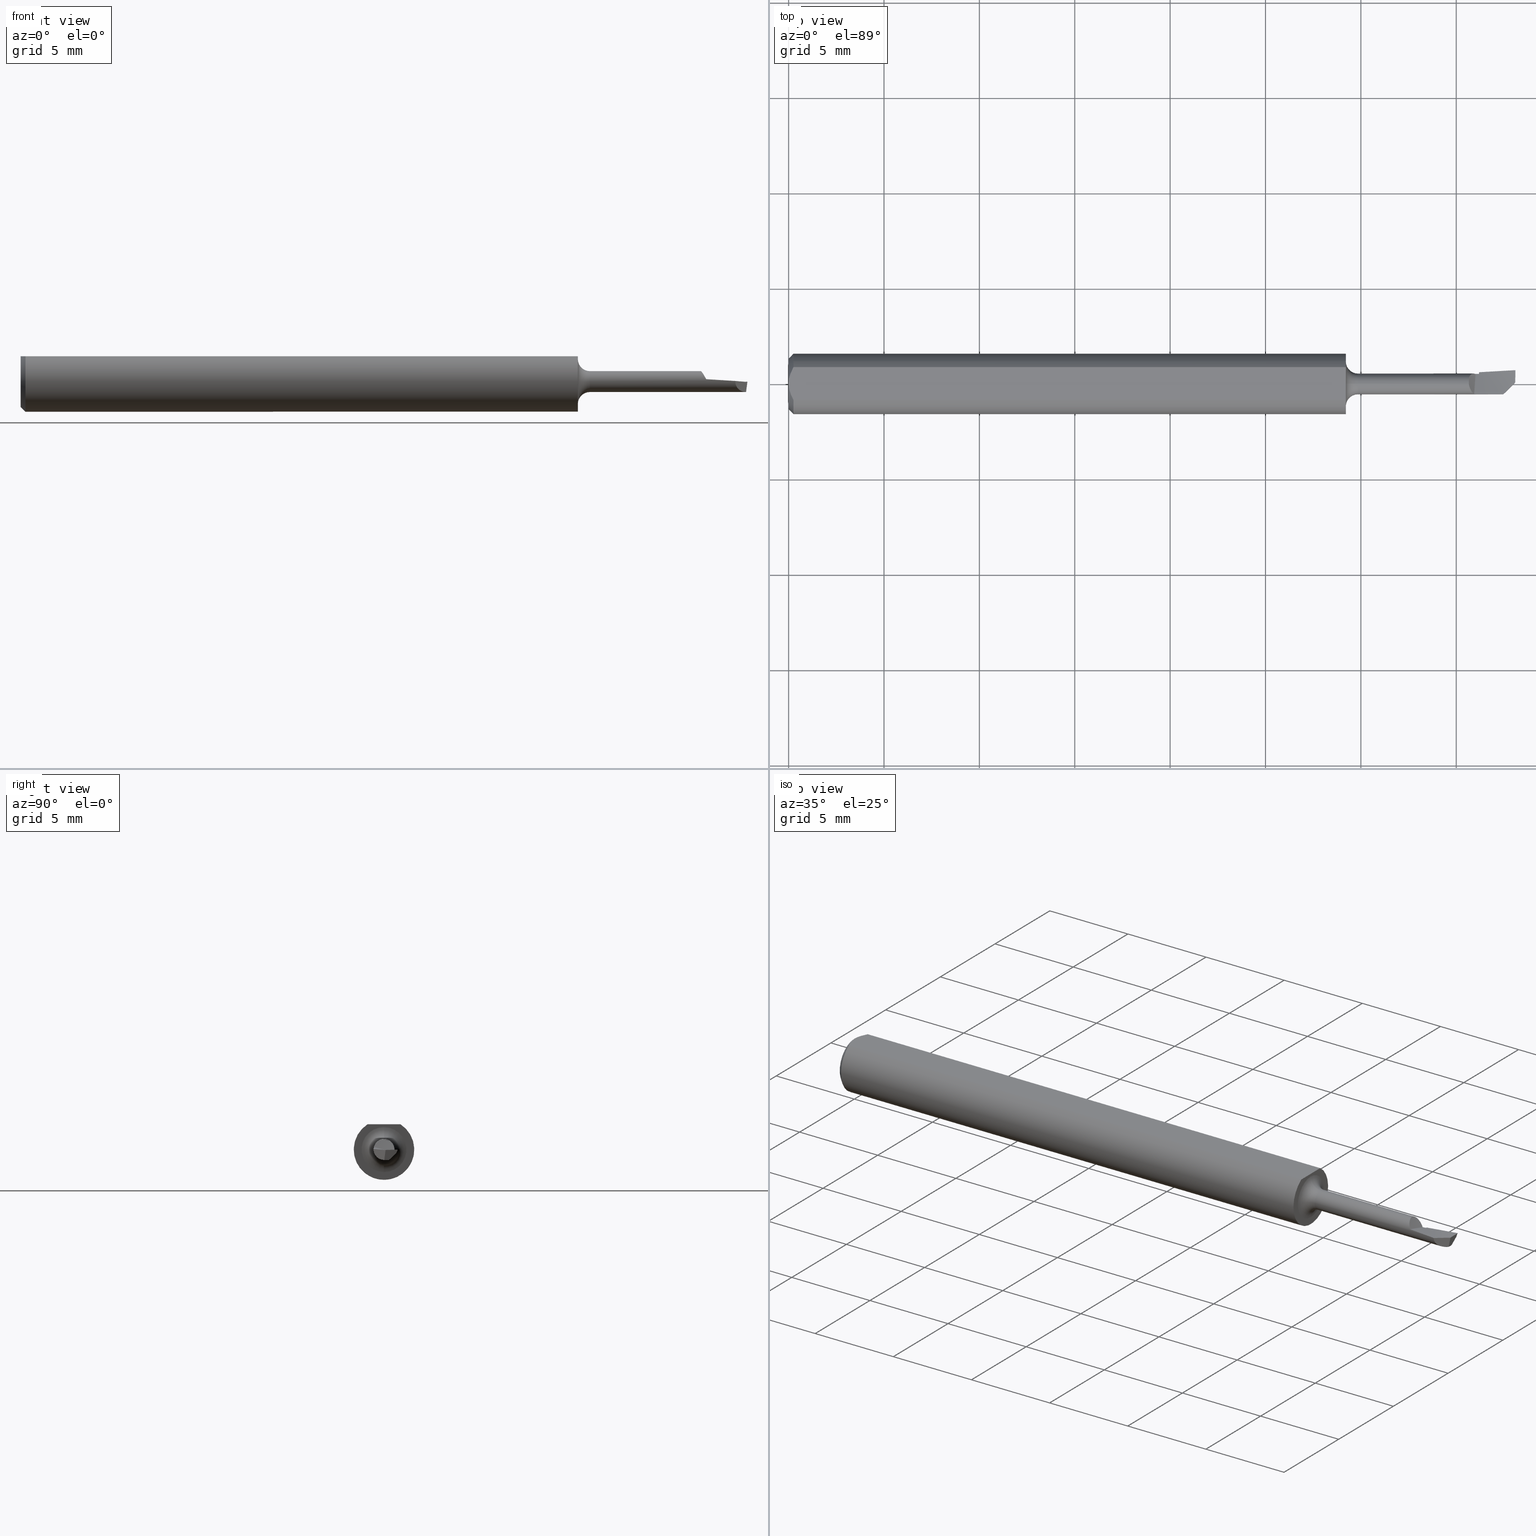
[diagram: canonical four-view strip — front | top / right | iso, engineering-drawing reading convention]
A machine part, canonical four-view strip (front | top / right | iso — engineering-drawing reading convention). The complete STEP part file that produces these views, byte-faithful:
ISO-10303-21;
HEADER;
FILE_DESCRIPTION (( 'STEP AP203' ),
    '1' );
FILE_NAME ('215967-HB52F.STEP',
    '2024-08-12T19:11:16',
    ( '' ),
    ( '' ),
    'SwSTEP 2.0',
    'SolidWorks 2024',
    '' );
FILE_SCHEMA (( 'CONFIG_CONTROL_DESIGN' ));
ENDSEC;

DATA;
#1 = CARTESIAN_POINT ( 'NONE',  ( 1.424999999999995381, 0.01564185672810495045, -0.01578351793001237652 ) ) ;
#2 = ORIENTED_EDGE ( 'NONE', *, *, #694, .F. ) ;
#3 = DIRECTION ( 'NONE',  ( -0.000000000000000000, 1.000000000000000000, 1.224646799147353207E-16 ) ) ;
#4 = CARTESIAN_POINT ( 'NONE',  ( 1.404000000000000137, -0.001430936881053231731, 0.02145232900275499330 ) ) ;
#5 = EDGE_LOOP ( 'NONE', ( #513, #487, #642, #104, #167, #698 ) ) ;
#6 = CARTESIAN_POINT ( 'NONE',  ( 1.499759475064647463, 0.01162366350489470873, -0.0007594100325611736688 ) ) ;
#7 = LINE ( 'NONE', #457, #711 ) ;
#8 = ORIENTED_EDGE ( 'NONE', *, *, #595, .F. ) ;
#9 = EDGE_CURVE ( 'NONE', #481, #325, #95, .T. ) ;
#10 = CARTESIAN_POINT ( 'NONE',  ( 1.425000000000000488, 0.02429942027433037652, -0.005652252262238595393 ) ) ;
#11 = CARTESIAN_POINT ( 'NONE',  ( 1.445131348683456274, -0.02135399945104765954, 0.003140518868011895129 ) ) ;
#12 = ORIENTED_EDGE ( 'NONE', *, *, #134, .F. ) ;
#13 = DIRECTION ( 'NONE',  ( 0.000000000000000000, 0.000000000000000000, -1.000000000000000000 ) ) ;
#14 = EDGE_CURVE ( 'NONE', #701, #187, #283, .T. ) ;
#15 = AXIS2_PLACEMENT_3D ( 'NONE', #737, #553, #118 ) ;
#16 = CARTESIAN_POINT ( 'NONE',  ( 1.458161817723647280, 0.02116751555953514871, -0.01367271324472339733 ) ) ;
#17 = ORIENTED_EDGE ( 'NONE', *, *, #605, .T. ) ;
#18 = CARTESIAN_POINT ( 'NONE',  ( 1.405767565616470760, -0.008508376164700823946, 0.02026258715271565813 ) ) ;
#19 = CARTESIAN_POINT ( 'NONE',  ( 0.000000000000000000, 0.000000000000000000, 0.000000000000000000 ) ) ;
#20 = UNCERTAINTY_MEASURE_WITH_UNIT (LENGTH_MEASURE( 1.000000000000000082E-05 ), #36, 'distance_accuracy_value', 'NONE');
#21 = CIRCLE ( 'NONE', #598, 0.02150000000000006420 ) ;
#22 = VERTEX_POINT ( 'NONE', #217 ) ;
#23 = FACE_OUTER_BOUND ( 'NONE', #311, .T. ) ;
#24 = EDGE_CURVE ( 'NONE', #223, #612, #282, .T. ) ;
#25 = CARTESIAN_POINT ( 'NONE',  ( 0.01000000000000000021, 0.000000000000000000, -0.06235000000000000264 ) ) ;
#26 = ORIENTED_EDGE ( 'NONE', *, *, #696, .F. ) ;
#27 = CC_DESIGN_PERSON_AND_ORGANIZATION_ASSIGNMENT ( #479, #800, ( #397 ) ) ;
#28 = CARTESIAN_POINT ( 'NONE',  ( 1.442849941309194861, 0.002663879577554852541, -0.02150000000000006420 ) ) ;
#29 = CARTESIAN_POINT ( 'NONE',  ( 1.081757561147792979, 0.02345453470986486391, 0.1121965381940851214 ) ) ;
#30 = AXIS2_PLACEMENT_3D ( 'NONE', #160, #225, #476 ) ;
#31 = CARTESIAN_POINT ( 'NONE',  ( 1.483215964182241997, -0.01328117750450686502, -0.0002413873365055665737 ) ) ;
#32 = AXIS2_PLACEMENT_3D ( 'NONE', #186, #729, #438 ) ;
#33 = DIRECTION ( 'NONE',  ( 1.000000000000000000, -0.000000000000000000, -0.000000000000000000 ) ) ;
#34 = CARTESIAN_POINT ( 'NONE',  ( 1.165406048918121495, -0.03708599446096518676, 0.1052857053542192167 ) ) ;
#35 = VERTEX_POINT ( 'NONE', #533 ) ;
#36 =( CONVERSION_BASED_UNIT ( 'INCH', #588 ) LENGTH_UNIT ( ) NAMED_UNIT ( #702 ) );
#37 = CARTESIAN_POINT ( 'NONE',  ( 0.000000000000000000, 0.000000000000000000, 0.000000000000000000 ) ) ;
#38 = CARTESIAN_POINT ( 'NONE',  ( 1.081757561147792979, -0.004701087707442859129, -0.001993232977313191909 ) ) ;
#39 = DIRECTION ( 'NONE',  ( 0.000000000000000000, 0.2789911060392298858, 0.9602936856769428431 ) ) ;
#40 = CARTESIAN_POINT ( 'NONE',  ( 0.007163450771350544227, -0.02864528976618612235, 0.05234999999999998682 ) ) ;
#41 = CARTESIAN_POINT ( 'NONE',  ( 1.081757561147792979, -0.005496989618190887238, 0.005889303093424798526 ) ) ;
#42 = EDGE_CURVE ( 'NONE', #676, #542, #758, .T. ) ;
#43 = EDGE_CURVE ( 'NONE', #672, #138, #597, .T. ) ;
#44 = PERSON_AND_ORGANIZATION_ROLE ( 'creator' ) ;
#45 = B_SPLINE_SURFACE_WITH_KNOTS ( 'NONE', 1, 3, ( 
 ( #412, #591, #707, #780, #777, #710, #787, #38, #290, #475 ),
 ( #159, #100, #294, #151, #354, #162, #593, #41, #228, #416 ) ),
 .UNSPECIFIED., .F., .F., .F.,
 ( 2, 2 ),
 ( 4, 2, 2, 2, 4 ),
 ( 0.000000000000000000, 1.000000000000000000 ),
 ( 0.000000000000000000, 0.2500000000000000000, 0.5000000000000000000, 0.7500000000000000000, 1.000000000000000000 ),
 .UNSPECIFIED. ) ;
#46 = CARTESIAN_POINT ( 'NONE',  ( 1.404000000000000359, 0.01279882537715956899, 0.01762029606134645279 ) ) ;
#47 = ADVANCED_FACE ( 'NONE', ( #352 ), #45, .T. ) ;
#48 = ORIENTED_EDGE ( 'NONE', *, *, #188, .F. ) ;
#49 = CC_DESIGN_APPROVAL ( #673, ( #216 ) ) ;
#50 = DATE_AND_TIME ( #105, #636 ) ;
#51 = DIRECTION ( 'NONE',  ( 0.000000000000000000, 0.000000000000000000, 1.000000000000000000 ) ) ;
#52 = DIRECTION ( 'NONE',  ( 1.000000000000000000, 0.000000000000000000, 0.000000000000000000 ) ) ;
#53 = EDGE_CURVE ( 'NONE', #657, #701, #80, .T. ) ;
#54 = CARTESIAN_POINT ( 'NONE',  ( 1.195238095238096099, -0.06068813773174865089, 0.09530386880206390132 ) ) ;
#55 = DIRECTION ( 'NONE',  ( 1.000000000000000000, 0.000000000000000000, 0.000000000000000000 ) ) ;
#56 = ORIENTED_EDGE ( 'NONE', *, *, #726, .F. ) ;
#57 = AXIS2_PLACEMENT_3D ( 'NONE', #596, #220, #649 ) ;
#58 = AXIS2_PLACEMENT_3D ( 'NONE', #677, #330, #270 ) ;
#59 = APPROVAL_STATUS ( 'not_yet_approved' ) ;
#60 = CARTESIAN_POINT ( 'NONE',  ( 1.271428571428571797, -0.03384624456246106139, 0.02023651617755066467 ) ) ;
#61 = CARTESIAN_POINT ( 'NONE',  ( 1.458163637438504967, 0.03926764017916081762, 0.04250832977183839623 ) ) ;
#62 = EDGE_LOOP ( 'NONE', ( #498, #75, #257, #250, #48 ) ) ;
#63 = PERSON_AND_ORGANIZATION_ROLE ( 'classification_officer' ) ;
#64 = CARTESIAN_POINT ( 'NONE',  ( 1.271428571428571797, -0.08244062386995472391, 0.08145219739190162622 ) ) ;
#65 = CARTESIAN_POINT ( 'NONE',  ( 1.424999999999995381, 0.02159155208912054077, -0.01096607200112786548 ) ) ;
#66 = VERTEX_POINT ( 'NONE', #4 ) ;
#67 = CARTESIAN_POINT ( 'NONE',  ( 1.081757561147792979, -0.004701087707442859129, -0.001993232977313191909 ) ) ;
#68 = EDGE_LOOP ( 'NONE', ( #426, #12, #155, #120, #172, #455, #547, #81, #571, #56 ) ) ;
#69 = DIRECTION ( 'NONE',  ( -1.000000000000000000, -0.000000000000000000, -0.000000000000000000 ) ) ;
#70 = ADVANCED_FACE ( 'NONE', ( #608 ), #101, .T. ) ;
#71 = ORIENTED_EDGE ( 'NONE', *, *, #243, .T. ) ;
#72 = CARTESIAN_POINT ( 'NONE',  ( 1.414899394003657607, -0.02091346100598579991, 0.004987699745485189157 ) ) ;
#73 = CC_DESIGN_APPROVAL ( #345, ( #397 ) ) ;
#74 = CARTESIAN_POINT ( 'NONE',  ( 1.175000000000000488, 0.000000000000000000, 0.000000000000000000 ) ) ;
#75 = ORIENTED_EDGE ( 'NONE', *, *, #53, .F. ) ;
#76 = CARTESIAN_POINT ( 'NONE',  ( 1.408902241746794681, 0.01980758880365477564, 0.008371765973705492733 ) ) ;
#77 = ORIENTED_EDGE ( 'NONE', *, *, #219, .F. ) ;
#78 = FACE_BOUND ( 'NONE', #446, .T. ) ;
#79 = CARTESIAN_POINT ( 'NONE',  ( 1.332703024459087615, 0.001533814952668849721, -0.01827784165637528352 ) ) ;
#80 = CIRCLE ( 'NONE', #182, 0.06234999999999997489 ) ;
#81 = ORIENTED_EDGE ( 'NONE', *, *, #459, .F. ) ;
#82 = ADVANCED_FACE ( 'NONE', ( #541 ), #293, .T. ) ;
#83 = CARTESIAN_POINT ( 'NONE',  ( 1.499094805327482849, 0.02529177018128879462, -0.007143923207321625952 ) ) ;
#84 = CARTESIAN_POINT ( 'NONE',  ( 1.409491864677373529, 0.02020229027023354509, 0.007356511793873904588 ) ) ;
#85 = EDGE_LOOP ( 'NONE', ( #374, #381, #520, #724 ) ) ;
#86 = CARTESIAN_POINT ( 'NONE',  ( 0.000000000000000000, 0.000000000000000000, 0.02150000000000002950 ) ) ;
#87 = CARTESIAN_POINT ( 'NONE',  ( 1.499699318082601041, 0.02744599607111772657, -0.002373854363363614266 ) ) ;
#88 = ORIENTED_EDGE ( 'NONE', *, *, #43, .F. ) ;
#89 = CARTESIAN_POINT ( 'NONE',  ( 0.001055043921633259376, -0.01186408073210959077, 0.05234999999999997988 ) ) ;
#90 = AXIS2_PLACEMENT_3D ( 'NONE', #19, #265, #567 ) ;
#91 = CIRCLE ( 'NONE', #30, 0.02150000000000002950 ) ;
#92 = EDGE_LOOP ( 'NONE', ( #579, #730, #759, #685, #144 ) ) ;
#93 = ADVANCED_FACE ( 'NONE', ( #493 ), #433, .T. ) ;
#94 = CARTESIAN_POINT ( 'NONE',  ( 1.453683392747637138, 0.004470352336924643052, -0.02150000000000007461 ) ) ;
#95 = B_SPLINE_CURVE_WITH_KNOTS ( 'NONE', 3,
 ( #587, #650, #31, #478 ),
 .UNSPECIFIED., .F., .F.,
 ( 4, 4 ),
 ( 1.146374888950049719E-05, 0.0008983364293375358054 ),
 .UNSPECIFIED. ) ;
#96 = CARTESIAN_POINT ( 'NONE',  ( 1.207230292803266769, -0.009966743016344394718, -0.006860117929781644683 ) ) ;
#97 = ORIENTED_EDGE ( 'NONE', *, *, #42, .T. ) ;
#98 =( NAMED_UNIT ( * ) SI_UNIT ( $, .STERADIAN. ) SOLID_ANGLE_UNIT ( ) );
#99 = CARTESIAN_POINT ( 'NONE',  ( 1.500000000000000222, -0.04996660079715883190, -0.08234999999999996489 ) ) ;
#100 = CARTESIAN_POINT ( 'NONE',  ( 1.458161817723647280, 0.02116751555953514871, -0.01367271324472339733 ) ) ;
#101 = B_SPLINE_SURFACE_WITH_KNOTS ( 'NONE', 1, 3, ( 
 ( #366, #61, #749, #256, #558, #603, #798, #370, #675, #304 ),
 ( #428, #248, #791, #501, #310, #236, #107, #67, #364, #600 ) ),
 .UNSPECIFIED., .F., .F., .F.,
 ( 2, 2 ),
 ( 4, 2, 2, 2, 4 ),
 ( 0.000000000000000000, 1.000000000000000000 ),
 ( 0.000000000000000000, 0.2500000000000000000, 0.5000000000000000000, 0.7500000000000000000, 1.000000000000000000 ),
 .UNSPECIFIED. ) ;
#102 = CARTESIAN_POINT ( 'NONE',  ( 0.000000000000000000, 0.000000000000000000, 0.000000000000000000 ) ) ;
#103 = CARTESIAN_POINT ( 'NONE',  ( 1.414787574867776287, -0.02300795159448523058, 0.005633649847458694487 ) ) ;
#104 = ORIENTED_EDGE ( 'NONE', *, *, #653, .T. ) ;
#105 = CALENDAR_DATE ( 2024, 12, 8 ) ;
#106 = CARTESIAN_POINT ( 'NONE',  ( 1.425000000000000488, -0.001739341499743084305, -0.02142952848634970334 ) ) ;
#107 = CARTESIAN_POINT ( 'NONE',  ( 1.165406048918121495, -0.005465177787697258864, -0.007993449245379110821 ) ) ;
#108 = APPROVAL_PERSON_ORGANIZATION ( #113, #673, #246 ) ;
#109 = CC_DESIGN_PERSON_AND_ORGANIZATION_ASSIGNMENT ( #665, #795, ( #163 ) ) ;
#110 = PLANE ( 'NONE',  #15 ) ;
#111 = PLANE ( 'NONE',  #32 ) ;
#112 = EDGE_LOOP ( 'NONE', ( #510, #287, #491, #753, #635 ) ) ;
#113 = PERSON_AND_ORGANIZATION ( #329, #732 ) ;
#114 = DIRECTION ( 'NONE',  ( -1.000000000000000000, 0.000000000000000000, -0.000000000000000000 ) ) ;
#115 = CARTESIAN_POINT ( 'NONE',  ( 1.425000000000000488, 0.000000000000000000, 0.000000000000000000 ) ) ;
#116 = ORIENTED_EDGE ( 'NONE', *, *, #696, .T. ) ;
#117 = CIRCLE ( 'NONE', #543, 0.05234999999999996600 ) ;
#118 = DIRECTION ( 'NONE',  ( -0.000000000000000000, 0.000000000000000000, 1.000000000000000000 ) ) ;
#119 = DIRECTION ( 'NONE',  ( 1.000000000000000000, 0.000000000000000000, 0.000000000000000000 ) ) ;
#120 = ORIENTED_EDGE ( 'NONE', *, *, #796, .T. ) ;
#121 = FACE_OUTER_BOUND ( 'NONE', #254, .T. ) ;
#122 = EDGE_CURVE ( 'NONE', #22, #657, #550, .T. ) ;
#123 = CARTESIAN_POINT ( 'NONE',  ( 1.404000000000000137, 0.01141254450192073604, 0.01822097220215430913 ) ) ;
#124 = VERTEX_POINT ( 'NONE', #179 ) ;
#125 = EDGE_CURVE ( 'NONE', #609, #266, #249, .T. ) ;
#126 = CARTESIAN_POINT ( 'NONE',  ( 1.417577589388774983, 0.02078340957901717023, -0.005504533247286040425 ) ) ;
#127 = CARTESIAN_POINT ( 'NONE',  ( 1.449996070981231400, 0.02458077460153596655, -0.008205630758722014251 ) ) ;
#128 = ORIENTED_EDGE ( 'NONE', *, *, #663, .T. ) ;
#129 = AXIS2_PLACEMENT_3D ( 'NONE', #489, #728, #170 ) ;
#130 = AXIS2_PLACEMENT_3D ( 'NONE', #681, #3, #131 ) ;
#131 = DIRECTION ( 'NONE',  ( 0.000000000000000000, -1.224646799147352961E-16, 1.000000000000000000 ) ) ;
#132 = VECTOR ( 'NONE', #232, 39.37007874015748143 ) ;
#133 = FACE_OUTER_BOUND ( 'NONE', #439, .T. ) ;
#134 = EDGE_CURVE ( 'NONE', #429, #676, #211, .T. ) ;
#135 = ORIENTED_EDGE ( 'NONE', *, *, #125, .T. ) ;
#136 = CARTESIAN_POINT ( 'NONE',  ( 1.150000000000000577, 0.000000000000000000, 0.04649999999999999967 ) ) ;
#137 = CARTESIAN_POINT ( 'NONE',  ( 1.404000000000000137, -0.001430936881053231731, 0.02145232900275499330 ) ) ;
#138 = VERTEX_POINT ( 'NONE', #496 ) ;
#139 = CYLINDRICAL_SURFACE ( 'NONE', #347, 0.06234999999999997489 ) ;
#140 = CARTESIAN_POINT ( 'NONE',  ( 1.424999999999995381, 0.02159155208912054077, -0.01096607200112786548 ) ) ;
#141 = ORIENTED_EDGE ( 'NONE', *, *, #368, .F. ) ;
#142 = DIRECTION ( 'NONE',  ( 0.000000000000000000, -1.000000000000000000, -1.036675771730518732E-16 ) ) ;
#143 = FACE_OUTER_BOUND ( 'NONE', #5, .T. ) ;
#144 = ORIENTED_EDGE ( 'NONE', *, *, #745, .F. ) ;
#145 = CARTESIAN_POINT ( 'NONE',  ( 1.425000000000000488, 2.632990618166813195E-18, -0.02150000000000002950 ) ) ;
#146 = CYLINDRICAL_SURFACE ( 'NONE', #482, 0.02150000000000002950 ) ;
#147 = AXIS2_PLACEMENT_3D ( 'NONE', #102, #359, #804 ) ;
#148 = ORIENTED_EDGE ( 'NONE', *, *, #184, .F. ) ;
#149 = LINE ( 'NONE', #643, #398 ) ;
#150 = CARTESIAN_POINT ( 'NONE',  ( 1.500000000000000222, 0.02850000000000000103, 0.000000000000000000 ) ) ;
#151 = CARTESIAN_POINT ( 'NONE',  ( 1.332703024459087615, 0.001533814952668849721, -0.01827784165637528352 ) ) ;
#152 = ADVANCED_FACE ( 'NONE', ( #744 ), #111, .F. ) ;
#153 = CARTESIAN_POINT ( 'NONE',  ( 1.081757561147792979, -0.005496989618190887238, 0.005889303093424798526 ) ) ;
#154 = AXIS2_PLACEMENT_3D ( 'NONE', #454, #69, #271 ) ;
#155 = ORIENTED_EDGE ( 'NONE', *, *, #390, .T. ) ;
#156 = EDGE_CURVE ( 'NONE', #750, #124, #572, .T. ) ;
#157 = CARTESIAN_POINT ( 'NONE',  ( 0.01000000000000000021, 0.000000000000000000, 0.000000000000000000 ) ) ;
#158 = CIRCLE ( 'NONE', #576, 0.02150000000000000175 ) ;
#159 = CARTESIAN_POINT ( 'NONE',  ( 1.500000000000000222, 0.02538339920284029758, -0.007000000000000001013 ) ) ;
#160 = CARTESIAN_POINT ( 'NONE',  ( 1.404000000000000137, 0.000000000000000000, 0.000000000000000000 ) ) ;
#161 = CARTESIAN_POINT ( 'NONE',  ( 1.165406048918121495, -0.01003352849168901752, -0.001520582291447845165 ) ) ;
#162 = CARTESIAN_POINT ( 'NONE',  ( 1.207230292803266769, -0.009966743016344394718, -0.006860117929781644683 ) ) ;
#163 = PRODUCT ( '215967-HB52F', '215967-HB52F', '', ( #789 ) ) ;
#164 = ADVANCED_FACE ( 'NONE', ( #133 ), #485, .F. ) ;
#165 = CALENDAR_DATE ( 2024, 12, 8 ) ;
#166 = PLANE ( 'NONE',  #280 ) ;
#167 = ORIENTED_EDGE ( 'NONE', *, *, #385, .T. ) ;
#168 = CC_DESIGN_DATE_AND_TIME_ASSIGNMENT ( #50, #552, ( #216 ) ) ;
#169 = APPROVAL_DATE_TIME ( #234, #673 ) ;
#170 = DIRECTION ( 'NONE',  ( -0.7071067811865479058, -0.7071067811865471286, 0.000000000000000000 ) ) ;
#171 = CARTESIAN_POINT ( 'NONE',  ( 1.404421513868064686, 0.01326650655907377248, 0.01705976028153335586 ) ) ;
#172 = ORIENTED_EDGE ( 'NONE', *, *, #646, .F. ) ;
#173 = LOCAL_TIME ( 12, 11, 16.00000000000000000, #177 ) ;
#174 = CARTESIAN_POINT ( 'NONE',  ( 1.429772521916677697, -0.0005931283937478291045, -0.02150000000021588462 ) ) ;
#175 = CARTESIAN_POINT ( 'NONE',  ( 1.408324198819218331, 0.01936133533428421524, 0.009385363520536408113 ) ) ;
#176 = EDGE_LOOP ( 'NONE', ( #194, #396, #451, #401 ) ) ;
#177 = COORDINATED_UNIVERSAL_TIME_OFFSET ( 8, 0, .BEHIND. ) ;
#178 = CARTESIAN_POINT ( 'NONE',  ( 1.347619047619048160, -0.09602892169548832291, 0.05953422266218373615 ) ) ;
#179 = CARTESIAN_POINT ( 'NONE',  ( 1.417577589388774983, 0.02078340957901717023, -0.005504533247286040425 ) ) ;
#180 = ORIENTED_EDGE ( 'NONE', *, *, #726, .T. ) ;
#181 = MANIFOLD_SOLID_BREP ( 'Flat', #199 ) ;
#182 = AXIS2_PLACEMENT_3D ( 'NONE', #667, #55, #802 ) ;
#183 = PERSON_AND_ORGANIZATION_ROLE ( 'creator' ) ;
#184 = EDGE_CURVE ( 'NONE', #612, #277, #305, .T. ) ;
#185 = PLANE ( 'NONE',  #129 ) ;
#186 = CARTESIAN_POINT ( 'NONE',  ( 1.500000000000000222, 0.02850000000000000103, 0.000000000000000000 ) ) ;
#187 = VERTEX_POINT ( 'NONE', #445 ) ;
#188 = EDGE_CURVE ( 'NONE', #187, #560, #473, .T. ) ;
#189 = CARTESIAN_POINT ( 'NONE',  ( 1.411853044221901055, -0.01954079743614218351, 0.01074519185527962085 ) ) ;
#190 = CARTESIAN_POINT ( 'NONE',  ( 1.425000000000000488, 0.01718122183072897866, -0.01453709887447453449 ) ) ;
#191 = ORIENTED_EDGE ( 'NONE', *, *, #276, .F. ) ;
#192 = CARTESIAN_POINT ( 'NONE',  ( 1.425000000000000266, 0.02203104345067827957, -0.005256482514836574235 ) ) ;
#193 = CARTESIAN_POINT ( 'NONE',  ( 1.425000000000000488, 0.02429942027433037652, -0.005652252262238595393 ) ) ;
#194 = ORIENTED_EDGE ( 'NONE', *, *, #284, .F. ) ;
#195 = B_SPLINE_CURVE_WITH_KNOTS ( 'NONE', 3,
 ( #521, #218, #342, #339 ),
 .UNSPECIFIED., .F., .F.,
 ( 4, 4 ),
 ( 6.962963715816944654E-18, 0.001913379285864070037 ),
 .UNSPECIFIED. ) ;
#196 = CONICAL_SURFACE ( 'NONE', #647, 0.06235000000000000264, 0.7853981633974502774 ) ;
#197 = AXIS2_PLACEMENT_3D ( 'NONE', #599, #420, #51 ) ;
#198 = CARTESIAN_POINT ( 'NONE',  ( 1.150000000000000577, -0.03386738844375219298, 0.05234999999999997988 ) ) ;
#199 = CLOSED_SHELL ( 'NONE', ( #565, #213, #82, #589, #362, #555, #414, #503, #375, #525, #164, #704, #340, #70, #47, #317, #443, #784, #417, #152, #93 ) ) ;
#200 = DIRECTION ( 'NONE',  ( 0.000000000000000000, 0.000000000000000000, 1.000000000000000000 ) ) ;
#201 = ORIENTED_EDGE ( 'NONE', *, *, #582, .T. ) ;
#202 = CARTESIAN_POINT ( 'NONE',  ( 1.498457727962923647, 0.02043079299873067425, -0.01198682537872130908 ) ) ;
#203 = DIRECTION ( 'NONE',  ( 0.000000000000000000, 0.000000000000000000, -1.000000000000000000 ) ) ;
#204 = ORIENTED_EDGE ( 'NONE', *, *, #361, .T. ) ;
#205 = CARTESIAN_POINT ( 'NONE',  ( 1.404000000000000137, -0.001430936881053231731, 0.02145232900275499330 ) ) ;
#206 = CARTESIAN_POINT ( 'NONE',  ( 1.404000000000000137, 0.007131405235996048607, 0.01929813987284250895 ) ) ;
#207 = DESIGN_CONTEXT ( 'detailed design', #431, 'design' ) ;
#208 = ORIENTED_EDGE ( 'NONE', *, *, #42, .F. ) ;
#209 = CARTESIAN_POINT ( 'NONE',  ( 0.000000000000000000, -5.426997665009263557E-18, 0.05234999999999997988 ) ) ;
#210 = CARTESIAN_POINT ( 'NONE',  ( 1.499473393555203815, 0.02664531720129386522, -0.004156886128052099567 ) ) ;
#211 = CIRCLE ( 'NONE', #769, 0.02150000000000002950 ) ;
#212 = ORIENTED_EDGE ( 'NONE', *, *, #639, .T. ) ;
#213 = ADVANCED_FACE ( 'NONE', ( #512 ), #691, .T. ) ;
#214 = CARTESIAN_POINT ( 'NONE',  ( 1.425000000000000488, 0.01400062050145052875, -0.01631663646632972031 ) ) ;
#215 = CARTESIAN_POINT ( 'NONE',  ( 1.404000000000000137, -0.01679020368060982898, 0.02586700380134576704 ) ) ;
#216 = SECURITY_CLASSIFICATION ( '', '', #418 ) ;
#217 = CARTESIAN_POINT ( 'NONE',  ( 0.01000000000000000021, -0.03386738844375219298, 0.05234999999999997988 ) ) ;
#218 = CARTESIAN_POINT ( 'NONE',  ( 1.475025786456243271, 0.02708186132639642599, -0.002213197077253599432 ) ) ;
#219 = EDGE_CURVE ( 'NONE', #325, #435, #229, .T. ) ;
#220 = DIRECTION ( 'NONE',  ( -1.000000000000000000, -0.000000000000000000, -0.000000000000000000 ) ) ;
#221 = VERTEX_POINT ( 'NONE', #331 ) ;
#222 = CARTESIAN_POINT ( 'NONE',  ( 0.9981090733772763901, 0.003198978370272035580, 0.006962485100125077528 ) ) ;
#223 = VERTEX_POINT ( 'NONE', #756 ) ;
#224 = B_SPLINE_CURVE_WITH_KNOTS ( 'NONE', 3,
 ( #106, #666, #174, #790 ),
 .UNSPECIFIED., .F., .F.,
 ( 4, 4 ),
 ( 1.177510931424660416E-05, 0.0001987894760625604363 ),
 .UNSPECIFIED. ) ;
#225 = DIRECTION ( 'NONE',  ( 1.000000000000000000, -0.000000000000000000, -0.000000000000000000 ) ) ;
#226 = FACE_OUTER_BOUND ( 'NONE', #92, .T. ) ;
#227 = EDGE_CURVE ( 'NONE', #35, #560, #578, .T. ) ;
#228 = CARTESIAN_POINT ( 'NONE',  ( 1.039938124779196782, -0.001005957894938854392, 0.007831459080901128494 ) ) ;
#229 =( BOUNDED_CURVE ( )  B_SPLINE_CURVE ( 2, ( #628, #11, #509 ),
 .UNSPECIFIED., .F., .T. ) 
 B_SPLINE_CURVE_WITH_KNOTS ( ( 3, 3 ),
 ( 0.08309014085609417455, 0.2788747443160921047 ),
 .UNSPECIFIED. ) 
 CURVE ( )  GEOMETRIC_REPRESENTATION_ITEM ( )  RATIONAL_B_SPLINE_CURVE ( ( 0.9808081055425239558, 0.9743343968049049675, 0.9754543227669443262 ) ) 
 REPRESENTATION_ITEM ( '' )  );
#230 = PERSON_AND_ORGANIZATION ( #329, #732 ) ;
#231 = DIRECTION ( 'NONE',  ( 0.000000000000000000, 0.000000000000000000, 1.000000000000000000 ) ) ;
#232 = DIRECTION ( 'NONE',  ( -1.000000000000000000, -0.000000000000000000, -0.000000000000000000 ) ) ;
#233 =( BOUNDED_CURVE ( )  B_SPLINE_CURVE ( 3, ( #387, #626, #322, #460 ),
 .UNSPECIFIED., .F., .T. ) 
 B_SPLINE_CURVE_WITH_KNOTS ( ( 4, 4 ),
 ( 6.225259102459130389, 7.853981633974480125 ),
 .UNSPECIFIED. ) 
 CURVE ( )  GEOMETRIC_REPRESENTATION_ITEM ( )  RATIONAL_B_SPLINE_CURVE ( ( 1.000000000000000000, 0.7908887178487953307, 0.7908887178487953307, 1.000000000000000000 ) ) 
 REPRESENTATION_ITEM ( '' )  );
#234 = DATE_AND_TIME ( #538, #173 ) ;
#235 = CARTESIAN_POINT ( 'NONE',  ( 0.001063697276021673783, 0.01189177144351694256, 0.05234999999999998682 ) ) ;
#236 = CARTESIAN_POINT ( 'NONE',  ( 1.207230292803266769, -0.003815303764330559705, -0.01185287567336235255 ) ) ;
#237 = CIRCLE ( 'NONE', #544, 0.04649999999999999967 ) ;
#238 = AXIS2_PLACEMENT_3D ( 'NONE', #259, #453, #326 ) ;
#239 = ORIENTED_EDGE ( 'NONE', *, *, #156, .T. ) ;
#240 = AXIS2_PLACEMENT_3D ( 'NONE', #652, #523, #718 ) ;
#241 = APPLICATION_PROTOCOL_DEFINITION ( 'international standard', 'config_control_design', 1994, #719 ) ;
#242 = CARTESIAN_POINT ( 'NONE',  ( 1.347619047619048160, 0.03209248808838006256, -0.02116969908350864113 ) ) ;
#243 = EDGE_CURVE ( 'NONE', #560, #22, #407, .T. ) ;
#244 = DIRECTION ( 'NONE',  ( 0.000000000000000000, -1.036675771730518732E-16, 1.000000000000000000 ) ) ;
#245 = ORIENTED_EDGE ( 'NONE', *, *, #273, .F. ) ;
#246 = APPROVAL_ROLE ( '' ) ;
#247 = CARTESIAN_POINT ( 'NONE',  ( 1.271428571428571797, 0.02726064241776607680, -0.02849460006662500600 ) ) ;
#248 = CARTESIAN_POINT ( 'NONE',  ( 1.458162087180981281, 0.02612427104711174258, -0.007491947833973394352 ) ) ;
#249 = B_SPLINE_CURVE_WITH_KNOTS ( 'NONE', 3,
 ( #1, #739, #253, #190, #660, #373, #486, #611, #615, #65 ),
 .UNSPECIFIED., .F., .F.,
 ( 4, 3, 3, 4 ),
 ( 0.000000000000000000, 5.030999089370832893E-05, 0.0001006199817874166985, 0.0001944496666829171184 ),
 .UNSPECIFIED. ) ;
#250 = ORIENTED_EDGE ( 'NONE', *, *, #243, .F. ) ;
#251 = APPROVAL_ROLE ( '' ) ;
#252 = CARTESIAN_POINT ( 'NONE',  ( 1.500000000000000000, -0.03809952085550569190, -0.005148831087731713801 ) ) ;
#253 = CARTESIAN_POINT ( 'NONE',  ( 1.425000000000000488, 0.01666810007700687823, -0.01495257182771897800 ) ) ;
#254 = EDGE_LOOP ( 'NONE', ( #315, #714 ) ) ;
#255 = FACE_OUTER_BOUND ( 'NONE', #530, .T. ) ;
#256 = CARTESIAN_POINT ( 'NONE',  ( 1.332703024459087615, 0.05413505465477762291, 0.008496474378181732845 ) ) ;
#257 = ORIENTED_EDGE ( 'NONE', *, *, #122, .F. ) ;
#258 = LOCAL_TIME ( 12, 11, 16.00000000000000000, #594 ) ;
#259 = CARTESIAN_POINT ( 'NONE',  ( 1.175000000000000488, 0.000000000000000000, 0.000000000000000000 ) ) ;
#260 = CC_DESIGN_PERSON_AND_ORGANIZATION_ASSIGNMENT ( #658, #63, ( #216 ) ) ;
#261 = LINE ( 'NONE', #761, #606 ) ;
#262 = ORIENTED_EDGE ( 'NONE', *, *, #515, .F. ) ;
#263 = PLANE ( 'NONE',  #584 ) ;
#264 =( BOUNDED_CURVE ( )  B_SPLINE_CURVE ( 3, ( #504, #192, #569, #10 ),
 .UNSPECIFIED., .F., .T. ) 
 B_SPLINE_CURVE_WITH_KNOTS ( ( 4, 4 ),
 ( 0.001297219582678752099, 0.001384856467366268797 ),
 .UNSPECIFIED. ) 
 CURVE ( )  GEOMETRIC_REPRESENTATION_ITEM ( )  RATIONAL_B_SPLINE_CURVE ( ( 0.9752921011479174229, 0.9753404050875729148, 0.9753925898998316857, 0.9754486555846937357 ) ) 
 REPRESENTATION_ITEM ( '' )  );
#265 = DIRECTION ( 'NONE',  ( -1.000000000000000000, -0.000000000000000000, -0.000000000000000000 ) ) ;
#266 = VERTEX_POINT ( 'NONE', #275 ) ;
#267 = CARTESIAN_POINT ( 'NONE',  ( 1.499094805327482849, 0.02529177018128879462, -0.007143923207321625952 ) ) ;
#268 = DIRECTION ( 'NONE',  ( 0.000000000000000000, 0.000000000000000000, 1.000000000000000000 ) ) ;
#269 = ORIENTED_EDGE ( 'NONE', *, *, #300, .T. ) ;
#270 = DIRECTION ( 'NONE',  ( 0.000000000000000000, 0.000000000000000000, -1.000000000000000000 ) ) ;
#271 = DIRECTION ( 'NONE',  ( 0.000000000000000000, 0.000000000000000000, 1.000000000000000000 ) ) ;
#272 = ORIENTED_EDGE ( 'NONE', *, *, #634, .F. ) ;
#273 = EDGE_CURVE ( 'NONE', #568, #266, #689, .T. ) ;
#274 = PLANE ( 'NONE',  #748 ) ;
#275 = CARTESIAN_POINT ( 'NONE',  ( 1.424999999999995381, 0.02159155208912054077, -0.01096607200112786548 ) ) ;
#276 = EDGE_CURVE ( 'NONE', #66, #750, #467, .T. ) ;
#277 = VERTEX_POINT ( 'NONE', #687 ) ;
#278 = B_SPLINE_CURVE_WITH_KNOTS ( 'NONE', 3,
 ( #561, #440, #6, #751 ),
 .UNSPECIFIED., .F., .F.,
 ( 4, 4 ),
 ( 4.813956337279344660E-17, 0.0006432184752475416040 ),
 .UNSPECIFIED. ) ;
#279 = CARTESIAN_POINT ( 'NONE',  ( 1.425000000000000488, 0.008753955795314148636, -0.01802090084852739360 ) ) ;
#280 = AXIS2_PLACEMENT_3D ( 'NONE', #360, #114, #427 ) ;
#281 = CARTESIAN_POINT ( 'NONE',  ( 1.475033202637507035, -0.02146393904924248641, 0.001244717032262903289 ) ) ;
#282 = CIRCLE ( 'NONE', #240, 0.04649999999999999967 ) ;
#283 = LINE ( 'NONE', #470, #132 ) ;
#284 = EDGE_CURVE ( 'NONE', #138, #384, #7, .T. ) ;
#285 = PLANE ( 'NONE',  #683 ) ;
#286 = CARTESIAN_POINT ( 'NONE',  ( 1.290878780574009399, -0.004165288938774202969, -0.01532368860539299292 ) ) ;
#287 = ORIENTED_EDGE ( 'NONE', *, *, #368, .T. ) ;
#288 = CARTESIAN_POINT ( 'NONE',  ( 1.497203264806438394, 0.01053632551861692114, -0.02150000000000006420 ) ) ;
#289 = CARTESIAN_POINT ( 'NONE',  ( 0.9981090733772763901, 0.07943887574231665860, 0.08141195150989843921 ) ) ;
#290 = CARTESIAN_POINT ( 'NONE',  ( 1.039935205557264153, -0.002375461946534187119, 2.807505212417583674E-05 ) ) ;
#291 = CARTESIAN_POINT ( 'NONE',  ( 1.425000000000000488, -0.001739341499743084305, -0.02142952848634970334 ) ) ;
#292 = CARTESIAN_POINT ( 'NONE',  ( 0.000000000000000000, 0.000000000000000000, 0.000000000000000000 ) ) ;
#293 = CONICAL_SURFACE ( 'NONE', #743, 0.06235000000000000264, 0.7853981633974502774 ) ;
#294 = CARTESIAN_POINT ( 'NONE',  ( 1.416351512229550913, 0.01428199597946366688, -0.01749026461417829692 ) ) ;
#295 = DIRECTION ( 'NONE',  ( -1.000000000000000000, -0.000000000000000000, -0.000000000000000000 ) ) ;
#296 = ORIENTED_EDGE ( 'NONE', *, *, #53, .T. ) ;
#297 = APPROVAL_STATUS ( 'not_yet_approved' ) ;
#298 = DIRECTION ( 'NONE',  ( 0.1220122463319275735, 0.1220122463319274347, 0.9850005195379716305 ) ) ;
#299 = DIRECTION ( 'NONE',  ( 0.000000000000000000, 0.000000000000000000, -1.000000000000000000 ) ) ;
#300 = EDGE_CURVE ( 'NONE', #676, #680, #261, .T. ) ;
#301 = COORDINATED_UNIVERSAL_TIME_OFFSET ( 8, 0, .BEHIND. ) ;
#302 = EDGE_CURVE ( 'NONE', #266, #462, #406, .T. ) ;
#303 = CARTESIAN_POINT ( 'NONE',  ( 1.423809523809524080, -0.03927470795201758874, 0.003547135924928881620 ) ) ;
#304 = CARTESIAN_POINT ( 'NONE',  ( 0.9981090733772763901, -0.0005946059438315781090, -0.04999646431592932178 ) ) ;
#305 = CIRCLE ( 'NONE', #755, 0.02499999999999993894 ) ;
#306 = VECTOR ( 'NONE', #298, 39.37007874015748854 ) ;
#307 = ORIENTED_EDGE ( 'NONE', *, *, #273, .T. ) ;
#308 = DATE_AND_TIME ( #165, #258 ) ;
#309 = CARTESIAN_POINT ( 'NONE',  ( 1.195238095238096099, -0.02778018095141069829, 0.02657716119708770225 ) ) ;
#310 = CARTESIAN_POINT ( 'NONE',  ( 1.290878780574009399, 0.003645996533051749748, -0.01664718927971280127 ) ) ;
#311 = EDGE_LOOP ( 'NONE', ( #389, #768, #616, #378 ) ) ;
#312 = APPROVAL_ROLE ( '' ) ;
#313 = CARTESIAN_POINT ( 'NONE',  ( 1.423809523809524302, 0.1150827804789777281, -0.01367006076300065522 ) ) ;
#314 = DIRECTION ( 'NONE',  ( 0.000000000000000000, 1.776356839400250465E-14, 1.000000000000000000 ) ) ;
#315 = ORIENTED_EDGE ( 'NONE', *, *, #640, .T. ) ;
#316 = CARTESIAN_POINT ( 'NONE',  ( 1.474389791697869878, 0.02277967062307575605, -0.01105979355649394820 ) ) ;
#317 = ADVANCED_FACE ( 'NONE', ( #143 ), #654, .T. ) ;
#318 =( BOUNDED_SURFACE ( )  B_SPLINE_SURFACE ( 3, 2, ( 
 ( #549, #365, #178, #64, #54 ),
 ( #252, #303, #545, #60, #309 ),
 ( #432, #801, #242, #247, #492 ),
 ( #670, #313, #805, #495, #742 ) ),
 .UNSPECIFIED., .F., .F., .F. ) 
 B_SPLINE_SURFACE_WITH_KNOTS ( ( 4, 4 ),
 ( 3, 2, 3 ),
 ( 0.000000000000000000, 1.000000000000000000 ),
 ( 0.000000000000000000, 0.5000000000000000000, 1.000000000000000000 ),
 .UNSPECIFIED. ) 
 GEOMETRIC_REPRESENTATION_ITEM ( )  RATIONAL_B_SPLINE_SURFACE ( (
 ( 1.000000000000000000, 0.9749279121818236193, 1.000000000000000000, 0.9749279121818236193, 1.000000000000000000),
 ( 0.9829519941216796619, 0.9583073354040093639, 0.9829519941216796619, 0.9583073354040093639, 0.9829519941216796619),
 ( 0.9829519941216796619, 0.9583073354040093639, 0.9829519941216796619, 0.9583073354040093639, 0.9829519941216796619),
 ( 1.000000000000000000, 0.9749279121818236193, 1.000000000000000000, 0.9749279121818236193, 1.000000000000000000) ) ) 
 REPRESENTATION_ITEM ( '' )  SURFACE ( )  );
#319 = CARTESIAN_POINT ( 'NONE',  ( 0.01000000000000000021, 0.000000000000000000, 0.000000000000000000 ) ) ;
#320 = ORIENTED_EDGE ( 'NONE', *, *, #24, .F. ) ;
#321 = VECTOR ( 'NONE', #119, 39.37007874015748143 ) ;
#322 = CARTESIAN_POINT ( 'NONE',  ( 1.483316460307294804, -0.01318068137945521516, -0.02149999999999999481 ) ) ;
#323 =( BOUNDED_CURVE ( )  B_SPLINE_CURVE ( 2, ( #410, #699, #781 ),
 .UNSPECIFIED., .F., .T. ) 
 B_SPLINE_CURVE_WITH_KNOTS ( ( 3, 3 ),
 ( 0.7298061363530162771, 0.7538572927359888931 ),
 .UNSPECIFIED. ) 
 CURVE ( )  GEOMETRIC_REPRESENTATION_ITEM ( )  RATIONAL_B_SPLINE_CURVE ( ( 0.9753699387581611369, 0.9752737226001659820, 0.9752921011479174229 ) ) 
 REPRESENTATION_ITEM ( '' )  );
#324 = DIRECTION ( 'NONE',  ( -1.000000000000000000, -0.000000000000000000, -0.000000000000000000 ) ) ;
#325 = VERTEX_POINT ( 'NONE', #281 ) ;
#326 = DIRECTION ( 'NONE',  ( 0.000000000000000000, 0.000000000000000000, 1.000000000000000000 ) ) ;
#327 = CARTESIAN_POINT ( 'NONE',  ( 0.01000000000000000021, 0.000000000000000000, 0.000000000000000000 ) ) ;
#328 = EDGE_LOOP ( 'NONE', ( #307, #556, #2 ) ) ;
#329 = PERSON ( 'UNSPECIFIED', 'UNSPECIFIED', 'UNSPECIFIED', ('UNSPECIFIED'), ('UNSPECIFIED'), ('UNSPECIFIED') ) ;
#330 = DIRECTION ( 'NONE',  ( 1.000000000000000000, 0.000000000000000000, 0.000000000000000000 ) ) ;
#331 = CARTESIAN_POINT ( 'NONE',  ( 1.404000000000000137, 0.000000000000000000, 0.02150000000000002950 ) ) ;
#332 = ORIENTED_EDGE ( 'NONE', *, *, #663, .F. ) ;
#333 = CARTESIAN_POINT ( 'NONE',  ( 0.01000000000000000021, 0.000000000000000000, -0.06235000000000000264 ) ) ;
#334 = DIRECTION ( 'NONE',  ( -1.000000000000000000, -0.000000000000000000, -0.000000000000000000 ) ) ;
#335 = EDGE_CURVE ( 'NONE', #277, #680, #793, .T. ) ;
#336 = EDGE_CURVE ( 'NONE', #35, #735, #117, .T. ) ;
#337 = EDGE_LOOP ( 'NONE', ( #421, #367, #88, #201, #204 ) ) ;
#338 =( GEOMETRIC_REPRESENTATION_CONTEXT ( 3 ) GLOBAL_UNCERTAINTY_ASSIGNED_CONTEXT ( ( #20 ) ) GLOBAL_UNIT_ASSIGNED_CONTEXT ( ( #36, #712, #98 ) ) REPRESENTATION_CONTEXT ( 'NONE', 'WORKASPACE' ) );
#339 = CARTESIAN_POINT ( 'NONE',  ( 1.425000000000000488, 0.02429942027433037652, -0.005652252262238595393 ) ) ;
#340 = ADVANCED_FACE ( 'NONE', ( #408 ), #534, .T. ) ;
#341 = ORIENTED_EDGE ( 'NONE', *, *, #156, .F. ) ;
#342 = CARTESIAN_POINT ( 'NONE',  ( 1.450022998404135732, 0.02565278699490899580, -0.004038776597758565734 ) ) ;
#343 = DIRECTION ( 'NONE',  ( 1.000000000000000000, 0.000000000000000000, 0.000000000000000000 ) ) ;
#344 = EDGE_LOOP ( 'NONE', ( #746, #97, #583 ) ) ;
#345 = APPROVAL ( #721, 'UNSPECIFIED' ) ;
#346 = FACE_OUTER_BOUND ( 'NONE', #517, .T. ) ;
#347 = AXIS2_PLACEMENT_3D ( 'NONE', #500, #695, #686 ) ;
#348 = CARTESIAN_POINT ( 'NONE',  ( 0.01000000000000000021, -0.03386738844375219298, 0.05234999999999997988 ) ) ;
#349 = VERTEX_POINT ( 'NONE', #465 ) ;
#350 = B_SPLINE_CURVE_WITH_KNOTS ( 'NONE', 3,
 ( #610, #540, #369, #235, #607, #484 ),
 .UNSPECIFIED., .F., .F.,
 ( 4, 2, 4 ),
 ( 0.0009229516234080545421, 0.001371626545108214999, 0.001820301466808375672 ),
 .UNSPECIFIED. ) ;
#351 = CARTESIAN_POINT ( 'NONE',  ( 1.417765056548884850, 0.02378172263981539331, -0.006087842211308895288 ) ) ;
#352 = FACE_OUTER_BOUND ( 'NONE', #688, .T. ) ;
#353 = CARTESIAN_POINT ( 'NONE',  ( 0.004679365186781217663, -0.02325953974079653444, 0.05234999999999998682 ) ) ;
#354 = CARTESIAN_POINT ( 'NONE',  ( 1.290878780574009399, -0.004165288938774202969, -0.01532368860539299292 ) ) ;
#355 = DATE_TIME_ROLE ( 'creation_date' ) ;
#356 = CARTESIAN_POINT ( 'NONE',  ( 1.499246154598271819, 0.02583505026491019277, -0.005949941212221313697 ) ) ;
#357 = VECTOR ( 'NONE', #783, 39.37007874015748854 ) ;
#358 = DIRECTION ( 'NONE',  ( 0.000000000000000000, 0.000000000000000000, 1.000000000000000000 ) ) ;
#359 = DIRECTION ( 'NONE',  ( 0.000000000000000000, 0.000000000000000000, 1.000000000000000000 ) ) ;
#360 = CARTESIAN_POINT ( 'NONE',  ( 1.425000000000000488, 0.02150000000000000175, 0.000000000000000000 ) ) ;
#361 = EDGE_CURVE ( 'NONE', #575, #568, #613, .T. ) ;
#362 = ADVANCED_FACE ( 'NONE', ( #522 ), #196, .T. ) ;
#363 = CC_DESIGN_SECURITY_CLASSIFICATION ( #216, ( #397 ) ) ;
#364 = CARTESIAN_POINT ( 'NONE',  ( 1.039935205557264153, -0.002375461946534187119, 2.807505212417583674E-05 ) ) ;
#365 = CARTESIAN_POINT ( 'NONE',  ( 1.423809523809524302, -0.1096172195210219497, 0.03761624793246581833 ) ) ;
#366 = CARTESIAN_POINT ( 'NONE',  ( 1.500000000000000222, 0.02850000000000000103, 0.04999999999999999584 ) ) ;
#367 = ORIENTED_EDGE ( 'NONE', *, *, #471, .F. ) ;
#368 = EDGE_CURVE ( 'NONE', #735, #22, #765, .T. ) ;
#369 = CARTESIAN_POINT ( 'NONE',  ( 0.004671770759546980435, 0.02323517832780102113, 0.05234999999999997988 ) ) ;
#370 = CARTESIAN_POINT ( 'NONE',  ( 1.081757561147792979, 0.02096437704789957598, -0.04687006092314244254 ) ) ;
#371 = AXIS2_PLACEMENT_3D ( 'NONE', #327, #767, #268 ) ;
#372 = FACE_OUTER_BOUND ( 'NONE', #344, .T. ) ;
#373 = CARTESIAN_POINT ( 'NONE',  ( 1.425000000000000711, 0.01820746539102062467, -0.01370615303325383935 ) ) ;
#374 = ORIENTED_EDGE ( 'NONE', *, *, #227, .F. ) ;
#375 = ADVANCED_FACE ( 'NONE', ( #586 ), #146, .T. ) ;
#376 = CARTESIAN_POINT ( 'NONE',  ( 1.499094805327482849, 0.02529177018128879462, -0.007143923207321625952 ) ) ;
#377 = CARTESIAN_POINT ( 'NONE',  ( 0.000000000000000000, -0.03386738844375219298, 0.05234999999999997988 ) ) ;
#378 = ORIENTED_EDGE ( 'NONE', *, *, #796, .F. ) ;
#379 = CARTESIAN_POINT ( 'NONE',  ( 0.000000000000000000, 0.000000000000000000, 0.000000000000000000 ) ) ;
#380 = CARTESIAN_POINT ( 'NONE',  ( 1.404000000000000137, 0.002850232830354239646, 0.02037525463351889249 ) ) ;
#381 = ORIENTED_EDGE ( 'NONE', *, *, #640, .F. ) ;
#382 = CARTESIAN_POINT ( 'NONE',  ( 1.409408289388668134, -0.01598937975179732032, 0.01507662555860100027 ) ) ;
#383 = CARTESIAN_POINT ( 'NONE',  ( 1.410005607466930044, 0.02052009543269506936, 0.006480182873875018484 ) ) ;
#384 = VERTEX_POINT ( 'NONE', #782 ) ;
#385 = EDGE_CURVE ( 'NONE', #542, #609, #723, .T. ) ;
#386 = APPROVAL_PERSON_ORGANIZATION ( #736, #679, #251 ) ;
#387 = CARTESIAN_POINT ( 'NONE',  ( 1.475033202637507035, -0.02146393904924248641, 0.001244717032262903289 ) ) ;
#388 = DIRECTION ( 'NONE',  ( 0.000000000000000000, -1.000000000000000000, 0.000000000000000000 ) ) ;
#389 = ORIENTED_EDGE ( 'NONE', *, *, #788, .T. ) ;
#390 = EDGE_CURVE ( 'NONE', #429, #506, #224, .T. ) ;
#391 = CARTESIAN_POINT ( 'NONE',  ( 1.424999999999995381, 0.01564185672810495045, -0.01578351793001237652 ) ) ;
#392 = CARTESIAN_POINT ( 'NONE',  ( 1.500000000000000222, 0.02850000000000000103, 0.000000000000000000 ) ) ;
#393 = ORIENTED_EDGE ( 'NONE', *, *, #639, .F. ) ;
#394 = CARTESIAN_POINT ( 'NONE',  ( 1.424999999999995381, 0.01564185672810495045, -0.01578351793001237652 ) ) ;
#395 = CARTESIAN_POINT ( 'NONE',  ( 1.175000000000000488, 0.000000000000000000, 0.04649999999999999967 ) ) ;
#396 = ORIENTED_EDGE ( 'NONE', *, *, #471, .T. ) ;
#397 = PRODUCT_DEFINITION_FORMATION_WITH_SPECIFIED_SOURCE ( 'ANY', '', #163, .NOT_KNOWN. ) ;
#398 = VECTOR ( 'NONE', #33, 39.37007874015748143 ) ;
#399 = CARTESIAN_POINT ( 'NONE',  ( 1.175000000000000488, 0.000000000000000000, 0.000000000000000000 ) ) ;
#400 = DIRECTION ( 'NONE',  ( -1.000000000000000000, -0.000000000000000000, -0.000000000000000000 ) ) ;
#401 = ORIENTED_EDGE ( 'NONE', *, *, #646, .T. ) ;
#402 = CC_DESIGN_PERSON_AND_ORGANIZATION_ASSIGNMENT ( #548, #183, ( #397 ) ) ;
#403 = DIRECTION ( 'NONE',  ( 0.000000000000000000, 0.000000000000000000, 1.000000000000000000 ) ) ;
#404 = CARTESIAN_POINT ( 'NONE',  ( -7.325417714211966649E-16, -0.005965286321680239069, 0.05234999999999997988 ) ) ;
#405 = CARTESIAN_POINT ( 'NONE',  ( 1.425000000000000488, 0.000000000000000000, 0.000000000000000000 ) ) ;
#406 = B_SPLINE_CURVE_WITH_KNOTS ( 'NONE', 3,
 ( #140, #505, #752, #193 ),
 .UNSPECIFIED., .F., .F.,
 ( 4, 4 ),
 ( 0.000000000000000000, 0.0001514854601506088368 ),
 .UNSPECIFIED. ) ;
#407 = CIRCLE ( 'NONE', #154, 0.06235000000000000264 ) ;
#408 = FACE_OUTER_BOUND ( 'NONE', #625, .T. ) ;
#409 = ORIENTED_EDGE ( 'NONE', *, *, #227, .T. ) ;
#410 = CARTESIAN_POINT ( 'NONE',  ( 1.417577589388774983, 0.02078340957901717023, -0.005504533247286040425 ) ) ;
#411 = DIRECTION ( 'NONE',  ( 0.000000000000000000, 0.000000000000000000, -1.000000000000000000 ) ) ;
#412 = CARTESIAN_POINT ( 'NONE',  ( 1.500000000000000222, 0.02850000000000000103, 0.000000000000000000 ) ) ;
#413 = CARTESIAN_POINT ( 'NONE',  ( 1.425000000000000488, 0.000000000000000000, 0.000000000000000000 ) ) ;
#414 = ADVANCED_FACE ( 'NONE', ( #226 ), #110, .T. ) ;
#415 = CARTESIAN_POINT ( 'NONE',  ( 1.290878780574009399, -0.09898480982667949568, 0.04078938878414195557 ) ) ;
#416 = CARTESIAN_POINT ( 'NONE',  ( 0.9981090733772763901, 0.003198978370272035580, 0.006962485100125077528 ) ) ;
#417 = ADVANCED_FACE ( 'NONE', ( #614 ), #185, .F. ) ;
#418 = SECURITY_CLASSIFICATION_LEVEL ( 'unclassified' ) ;
#419 = TOROIDAL_SURFACE ( 'NONE', #238, 0.04649999999999999967, 0.02499999999999993894 ) ;
#420 = DIRECTION ( 'NONE',  ( 1.000000000000000000, -0.000000000000000000, -0.000000000000000000 ) ) ;
#421 = ORIENTED_EDGE ( 'NONE', *, *, #515, .T. ) ;
#422 = B_SPLINE_CURVE_WITH_KNOTS ( 'NONE', 3,
 ( #573, #690, #202, #267 ),
 .UNSPECIFIED., .F., .F.,
 ( 4, 4 ),
 ( 1.008390375860041719E-05, 0.0005351935004141156324 ),
 .UNSPECIFIED. ) ;
#423 = CARTESIAN_POINT ( 'NONE',  ( 1.425000000000000488, 0.02429942027433037652, -0.005652252262238595393 ) ) ;
#424 = EDGE_CURVE ( 'NONE', #612, #223, #237, .T. ) ;
#425 = CARTESIAN_POINT ( 'NONE',  ( 1.406468053298798537, 0.01730275897608609184, 0.01281705821588479538 ) ) ;
#426 = ORIENTED_EDGE ( 'NONE', *, *, #300, .F. ) ;
#427 = DIRECTION ( 'NONE',  ( -0.000000000000000000, 0.000000000000000000, 1.000000000000000000 ) ) ;
#428 = CARTESIAN_POINT ( 'NONE',  ( 1.500000000000000222, 0.02850000000000000103, 0.000000000000000000 ) ) ;
#429 = VERTEX_POINT ( 'NONE', #722 ) ;
#430 = CALENDAR_DATE ( 2024, 12, 8 ) ;
#431 = APPLICATION_CONTEXT ( 'configuration controlled 3d designs of mechanical parts and assemblies' ) ;
#432 = CARTESIAN_POINT ( 'NONE',  ( 1.500000000000000000, 0.03809952085550592088, -0.005148831087731626198 ) ) ;
#433 = PLANE ( 'NONE',  #497 ) ;
#434 = AXIS2_PLACEMENT_3D ( 'NONE', #405, #466, #358 ) ;
#435 = VERTEX_POINT ( 'NONE', #659 ) ;
#436 = CALENDAR_DATE ( 2024, 12, 8 ) ;
#437 = CARTESIAN_POINT ( 'NONE',  ( 1.150000000000000577, 0.000000000000000000, 0.000000000000000000 ) ) ;
#438 = DIRECTION ( 'NONE',  ( 0.1218739150664907706, 0.000000000000000000, 0.9925455903012041503 ) ) ;
#439 = EDGE_LOOP ( 'NONE', ( #8, #668, #799, #458 ) ) ;
#440 = CARTESIAN_POINT ( 'NONE',  ( 1.499865813195348618, 0.02006269027368219604, -0.0004931663390506706374 ) ) ;
#441 = CARTESIAN_POINT ( 'NONE',  ( 1.424999999999995381, 0.02159155208912054077, -0.01096607200112786548 ) ) ;
#442 = ORIENTED_EDGE ( 'NONE', *, *, #694, .T. ) ;
#443 = ADVANCED_FACE ( 'NONE', ( #372 ), #166, .F. ) ;
#444 = CARTESIAN_POINT ( 'NONE',  ( 1.500000000000000222, 0.02850000000000000103, 0.000000000000000000 ) ) ;
#445 = CARTESIAN_POINT ( 'NONE',  ( 0.01000000000000000021, 0.03386738844375217911, 0.05234999999999997988 ) ) ;
#446 = EDGE_LOOP ( 'NONE', ( #632, #803 ) ) ;
#447 = AXIS2_PLACEMENT_3D ( 'NONE', #74, #334, #200 ) ;
#448 = AXIS2_PLACEMENT_3D ( 'NONE', #379, #507, #617 ) ;
#449 = PLANE ( 'NONE',  #58 ) ;
#450 = CARTESIAN_POINT ( 'NONE',  ( 1.474993152200567259, 0.02708000821899088015, -0.004477995831577369704 ) ) ;
#451 = ORIENTED_EDGE ( 'NONE', *, *, #9, .T. ) ;
#452 = ADVANCED_BREP_SHAPE_REPRESENTATION ( '215967-HB52F', ( #181, #147 ), #338 ) ;
#453 = DIRECTION ( 'NONE',  ( -1.000000000000000000, -0.000000000000000000, -0.000000000000000000 ) ) ;
#454 = CARTESIAN_POINT ( 'NONE',  ( 0.01000000000000000021, 0.000000000000000000, 0.000000000000000000 ) ) ;
#455 = ORIENTED_EDGE ( 'NONE', *, *, #219, .T. ) ;
#456 = DIRECTION ( 'NONE',  ( 1.000000000000000000, 0.000000000000000000, 0.000000000000000000 ) ) ;
#457 = CARTESIAN_POINT ( 'NONE',  ( 1.448248570843374550, -0.04824857084337466628, -0.02150000000000006420 ) ) ;
#458 = ORIENTED_EDGE ( 'NONE', *, *, #335, .T. ) ;
#459 = EDGE_CURVE ( 'NONE', #221, #66, #725, .T. ) ;
#460 = CARTESIAN_POINT ( 'NONE',  ( 1.496497141686749410, 1.280553747030123384E-17, -0.02150000000000006420 ) ) ;
#461 = CARTESIAN_POINT ( 'NONE',  ( 1.332703024459087615, -0.1049435305055015089, 0.01004165516144563640 ) ) ;
#462 = VERTEX_POINT ( 'NONE', #423 ) ;
#463 = CC_DESIGN_APPROVAL ( #679, ( #772 ) ) ;
#464 = DIRECTION ( 'NONE',  ( 0.000000000000000000, 0.000000000000000000, 1.000000000000000000 ) ) ;
#465 = CARTESIAN_POINT ( 'NONE',  ( 1.425000000000000488, 0.02089784835561307383, -0.005052715517996714256 ) ) ;
#466 = DIRECTION ( 'NONE',  ( 1.000000000000000000, 0.000000000000000000, 0.000000000000000000 ) ) ;
#467 = B_SPLINE_CURVE_WITH_KNOTS ( 'NONE', 3,
 ( #137, #380, #206, #562 ),
 .UNSPECIFIED., .F., .F.,
 ( 4, 4 ),
 ( 0.000000000000000000, 1.000000000000000000 ),
 .UNSPECIFIED. ) ;
#468 = DIRECTION ( 'NONE',  ( -1.000000000000000000, -0.000000000000000000, -0.000000000000000000 ) ) ;
#469 = CARTESIAN_POINT ( 'NONE',  ( 1.499094805327482849, 0.02529177018128879462, -0.007143923207321625952 ) ) ;
#470 = CARTESIAN_POINT ( 'NONE',  ( 0.000000000000000000, 0.03386738844375217911, 0.05234999999999997988 ) ) ;
#471 = EDGE_CURVE ( 'NONE', #138, #481, #733, .T. ) ;
#472 = CARTESIAN_POINT ( 'NONE',  ( 1.432154029367860959, 1.333910153156378525E-19, -0.02150000000000006420 ) ) ;
#473 = CIRCLE ( 'NONE', #371, 0.06235000000000000264 ) ;
#474 = CARTESIAN_POINT ( 'NONE',  ( 1.458139665944591989, -0.07400299023315816405, -0.06920797256364091821 ) ) ;
#475 = CARTESIAN_POINT ( 'NONE',  ( 0.9981090733772763901, -5.678010737478853751E-07, 6.746386157140570793E-09 ) ) ;
#476 = DIRECTION ( 'NONE',  ( 0.000000000000000000, 1.776356839400250465E-15, 1.000000000000000000 ) ) ;
#477 = CARTESIAN_POINT ( 'NONE',  ( 1.425000000000000488, 0.01400062050145052875, -0.01631663646632972031 ) ) ;
#478 = CARTESIAN_POINT ( 'NONE',  ( 1.475033202637507035, -0.02146393904924248641, 0.001244717032262903289 ) ) ;
#479 = PERSON_AND_ORGANIZATION ( #329, #732 ) ;
#480 = DIRECTION ( 'NONE',  ( -1.000000000000000000, -0.000000000000000000, -0.000000000000000000 ) ) ;
#481 = VERTEX_POINT ( 'NONE', #797 ) ;
#482 = AXIS2_PLACEMENT_3D ( 'NONE', #292, #400, #532 ) ;
#483 = CIRCLE ( 'NONE', #130, 0.02499999999999993894 ) ;
#484 = CARTESIAN_POINT ( 'NONE',  ( 0.000000000000000000, -5.426997665009263557E-18, 0.05234999999999997988 ) ) ;
#485 = TOROIDAL_SURFACE ( 'NONE', #447, 0.04649999999999999967, 0.02499999999999993894 ) ;
#486 = CARTESIAN_POINT ( 'NONE',  ( 1.425000000000000711, 0.01872058725043749747, -0.01329068021054568942 ) ) ;
#487 = ORIENTED_EDGE ( 'NONE', *, *, #788, .F. ) ;
#488 = SHAPE_DEFINITION_REPRESENTATION ( #720, #452 ) ;
#489 = CARTESIAN_POINT ( 'NONE',  ( 1.460857864376269077, -0.03563927731048022185, -0.04999999999999998890 ) ) ;
#490 = CARTESIAN_POINT ( 'NONE',  ( 1.405091203653684229, 0.01502562333285145831, 0.01556054116780313142 ) ) ;
#491 = ORIENTED_EDGE ( 'NONE', *, *, #122, .T. ) ;
#492 = CARTESIAN_POINT ( 'NONE',  ( 1.195238095238096099, 0.01972914446681337669, -0.03299764854647569551 ) ) ;
#493 = FACE_OUTER_BOUND ( 'NONE', #112, .T. ) ;
#494 = DATE_AND_TIME ( #430, #563 ) ;
#495 = CARTESIAN_POINT ( 'NONE',  ( 1.271428571428571797, 0.09775478536539224106, -0.06224884627206195287 ) ) ;
#496 = CARTESIAN_POINT ( 'NONE',  ( 1.497116722688121682, 0.0006195810013722261337, -0.02150000000000006420 ) ) ;
#497 = AXIS2_PLACEMENT_3D ( 'NONE', #671, #244, #554 ) ;
#498 = ORIENTED_EDGE ( 'NONE', *, *, #14, .F. ) ;
#499 = EDGE_CURVE ( 'NONE', #187, #735, #350, .T. ) ;
#500 = CARTESIAN_POINT ( 'NONE',  ( 0.000000000000000000, 0.000000000000000000, 0.000000000000000000 ) ) ;
#501 = CARTESIAN_POINT ( 'NONE',  ( 1.332703024459087615, 0.009411483893003917342, -0.01743512769227063830 ) ) ;
#502 = ORIENTED_EDGE ( 'NONE', *, *, #757, .F. ) ;
#503 = ADVANCED_FACE ( 'NONE', ( #661 ), #318, .T. ) ;
#504 = CARTESIAN_POINT ( 'NONE',  ( 1.425000000000000488, 0.02089784835561307383, -0.005052715517996714256 ) ) ;
#505 = CARTESIAN_POINT ( 'NONE',  ( 1.424999999999998046, 0.02249417421939178124, -0.009194798450029597475 ) ) ;
#506 = VERTEX_POINT ( 'NONE', #674 ) ;
#507 = DIRECTION ( 'NONE',  ( -1.000000000000000000, -0.000000000000000000, -0.000000000000000000 ) ) ;
#508 = EDGE_CURVE ( 'NONE', #575, #609, #738, .T. ) ;
#509 = CARTESIAN_POINT ( 'NONE',  ( 1.414899394003657607, -0.02091346100598579991, 0.004987699745485189157 ) ) ;
#510 = ORIENTED_EDGE ( 'NONE', *, *, #499, .T. ) ;
#511 = CARTESIAN_POINT ( 'NONE',  ( 1.150000000000000577, 0.1123499999999999360, 0.000000000000000000 ) ) ;
#512 = FACE_OUTER_BOUND ( 'NONE', #762, .T. ) ;
#513 = ORIENTED_EDGE ( 'NONE', *, *, #582, .F. ) ;
#514 = FACE_OUTER_BOUND ( 'NONE', #537, .T. ) ;
#515 = EDGE_CURVE ( 'NONE', #568, #481, #278, .T. ) ;
#516 = CARTESIAN_POINT ( 'NONE',  ( 1.409201443697954081, 0.02001510735481548328, 0.007854305460995893162 ) ) ;
#517 = EDGE_LOOP ( 'NONE', ( #116, #564, #740 ) ) ;
#518 = CARTESIAN_POINT ( 'NONE',  ( 1.400000000000000133, 0.000000000000000000, -0.02150000000000006420 ) ) ;
#519 = CARTESIAN_POINT ( 'NONE',  ( 1.410927207659051108, 0.02102110365573645057, 0.005009132487758185745 ) ) ;
#520 = ORIENTED_EDGE ( 'NONE', *, *, #499, .F. ) ;
#521 = CARTESIAN_POINT ( 'NONE',  ( 1.500000000000000222, 0.02850000000000000103, 0.000000000000000000 ) ) ;
#522 = FACE_OUTER_BOUND ( 'NONE', #85, .T. ) ;
#523 = DIRECTION ( 'NONE',  ( -1.000000000000000000, -0.000000000000000000, -0.000000000000000000 ) ) ;
#524 = DIRECTION ( 'NONE',  ( -1.000000000000000000, -0.000000000000000000, -0.000000000000000000 ) ) ;
#525 = ADVANCED_FACE ( 'NONE', ( #121 ), #449, .F. ) ;
#526 = CARTESIAN_POINT ( 'NONE',  ( 1.416351512229550913, -0.09236170228387209635, -0.04517673453263282984 ) ) ;
#527 = CARTESIAN_POINT ( 'NONE',  ( 1.497103920424762924, -0.0008474130755104805580, -0.02150000000000006420 ) ) ;
#528 = CARTESIAN_POINT ( 'NONE',  ( 1.486298091815556166, 0.009176957404581636765, -0.02150000000000007808 ) ) ;
#529 = CARTESIAN_POINT ( 'NONE',  ( 1.499397621158190530, 0.02637579248542201368, -0.004754823639829572172 ) ) ;
#530 = EDGE_LOOP ( 'NONE', ( #296, #17 ) ) ;
#531 = CARTESIAN_POINT ( 'NONE',  ( 1.175000000000000488, 2.632990618166817432E-18, -0.02150000000000006420 ) ) ;
#532 = DIRECTION ( 'NONE',  ( 0.000000000000000000, 0.000000000000000000, 1.000000000000000000 ) ) ;
#533 = CARTESIAN_POINT ( 'NONE',  ( 0.000000000000000000, 0.000000000000000000, -0.05234999999999996600 ) ) ;
#534 = B_SPLINE_SURFACE_WITH_KNOTS ( 'NONE', 1, 3, ( 
 ( #215, #776, #46, #592 ),
 ( #103, #644, #713, #351 ) ),
 .UNSPECIFIED., .F., .F., .F.,
 ( 2, 2 ),
 ( 4, 4 ),
 ( 0.000000000000000000, 1.000000000000000000 ),
 ( 0.002208493566349589796, 0.003376839010406534544 ),
 .UNSPECIFIED. ) ;
#535 = APPROVAL_DATE_TIME ( #494, #679 ) ;
#536 = CARTESIAN_POINT ( 'NONE',  ( 1.499321887878114934, 0.02610542137475109492, -0.005352382426942667998 ) ) ;
#537 = EDGE_LOOP ( 'NONE', ( #320, #629, #180, #148 ) ) ;
#538 = CALENDAR_DATE ( 2024, 12, 8 ) ;
#539 = CC_DESIGN_DATE_AND_TIME_ASSIGNMENT ( #785, #355, ( #772 ) ) ;
#540 = CARTESIAN_POINT ( 'NONE',  ( 0.007185421074056353059, 0.02868573718286557619, 0.05234999999999997988 ) ) ;
#541 = FACE_OUTER_BOUND ( 'NONE', #692, .T. ) ;
#542 = VERTEX_POINT ( 'NONE', #566 ) ;
#543 = AXIS2_PLACEMENT_3D ( 'NONE', #37, #295, #656 ) ;
#544 = AXIS2_PLACEMENT_3D ( 'NONE', #437, #480, #231 ) ;
#545 = CARTESIAN_POINT ( 'NONE',  ( 1.347619047619048160, -0.03656047625723932853, 0.01189182605123977228 ) ) ;
#546 = DIRECTION ( 'NONE',  ( 1.000000000000000000, 0.000000000000000000, 0.000000000000000000 ) ) ;
#547 = ORIENTED_EDGE ( 'NONE', *, *, #634, .T. ) ;
#548 = PERSON_AND_ORGANIZATION ( #329, #732 ) ;
#549 = CARTESIAN_POINT ( 'NONE',  ( 1.500000000000000222, -0.1123499999999997279, 0.01197309358473253905 ) ) ;
#550 = LINE ( 'NONE', #377, #321 ) ;
#551 = ORIENTED_EDGE ( 'NONE', *, *, #9, .F. ) ;
#552 = DATE_TIME_ROLE ( 'classification_date' ) ;
#553 = DIRECTION ( 'NONE',  ( -1.000000000000000000, 0.000000000000000000, -0.000000000000000000 ) ) ;
#554 = DIRECTION ( 'NONE',  ( 0.000000000000000000, -1.000000000000000000, -1.036675771730518732E-16 ) ) ;
#555 = ADVANCED_FACE ( 'NONE', ( #78, #255 ), #263, .T. ) ;
#556 = ORIENTED_EDGE ( 'NONE', *, *, #302, .T. ) ;
#557 = FACE_OUTER_BOUND ( 'NONE', #62, .T. ) ;
#558 = CARTESIAN_POINT ( 'NONE',  ( 1.290878780574009399, 0.05372316915329450326, -0.003804971795186868483 ) ) ;
#559 = EDGE_CURVE ( 'NONE', #349, #462, #264, .T. ) ;
#560 = VERTEX_POINT ( 'NONE', #333 ) ;
#561 = CARTESIAN_POINT ( 'NONE',  ( 1.500000000000000222, 0.02850000000000000103, 0.000000000000000000 ) ) ;
#562 = CARTESIAN_POINT ( 'NONE',  ( 1.404000000000000137, 0.01141254450192073604, 0.01822097220215430913 ) ) ;
#563 = LOCAL_TIME ( 12, 11, 16.00000000000000000, #601 ) ;
#564 = ORIENTED_EDGE ( 'NONE', *, *, #459, .T. ) ;
#565 = ADVANCED_FACE ( 'NONE', ( #514 ), #419, .F. ) ;
#566 = CARTESIAN_POINT ( 'NONE',  ( 1.425000000000000488, 0.01400062050145052875, -0.01631663646632972031 ) ) ;
#567 = DIRECTION ( 'NONE',  ( 0.000000000000000000, 0.000000000000000000, 1.000000000000000000 ) ) ;
#568 = VERTEX_POINT ( 'NONE', #444 ) ;
#569 = CARTESIAN_POINT ( 'NONE',  ( 1.425000000000000044, 0.02316490530370237874, -0.005456328681588905848 ) ) ;
#570 = CARTESIAN_POINT ( 'NONE',  ( 1.500000000000000222, 0.02538339920284029758, -0.007000000000000001013 ) ) ;
#571 = ORIENTED_EDGE ( 'NONE', *, *, #757, .T. ) ;
#572 = B_SPLINE_CURVE_WITH_KNOTS ( 'NONE', 3,
 ( #123, #171, #490, #425, #662, #734, #175, #76, #516, #697, #623, #84, #383, #519, #684, #633, #574 ),
 .UNSPECIFIED., .F., .F.,
 ( 4, 2, 2, 1, 1, 1, 2, 2, 2, 4 ),
 ( 0.000000000000000000, 0.2499999999997107314, 0.3749999999995613509, 0.4374999999994866884, 0.4687499999994438893, 0.4843749999994169664, 0.4921874999993978705, 0.4999999999993787747, 0.7499999999996892486, 1.000000000000000000 ),
 .UNSPECIFIED. ) ;
#573 = CARTESIAN_POINT ( 'NONE',  ( 1.497203264806438394, 0.01053632551861692114, -0.02150000000000006420 ) ) ;
#574 = CARTESIAN_POINT ( 'NONE',  ( 1.417577589388774983, 0.02078340957901717023, -0.005504533247286040425 ) ) ;
#575 = VERTEX_POINT ( 'NONE', #83 ) ;
#576 = AXIS2_PLACEMENT_3D ( 'NONE', #413, #770, #464 ) ;
#577 = CARTESIAN_POINT ( 'NONE',  ( 1.404000000000000137, 0.01141254450192073604, 0.01822097220215430913 ) ) ;
#578 = LINE ( 'NONE', #25, #682 ) ;
#579 = ORIENTED_EDGE ( 'NONE', *, *, #559, .T. ) ;
#580 = DIRECTION ( 'NONE',  ( 1.000000000000000000, 0.000000000000000000, -0.000000000000000000 ) ) ;
#581 = CARTESIAN_POINT ( 'NONE',  ( 1.424999999999995381, 0.01564185672810495045, -0.01578351793001237652 ) ) ;
#582 = EDGE_CURVE ( 'NONE', #672, #575, #422, .T. ) ;
#583 = ORIENTED_EDGE ( 'NONE', *, *, #653, .F. ) ;
#584 = AXIS2_PLACEMENT_3D ( 'NONE', #511, #456, #13 ) ;
#585 = CARTESIAN_POINT ( 'NONE',  ( 1.475402435683891955, 0.007758262187033744539, -0.02150000000000006767 ) ) ;
#586 = FACE_OUTER_BOUND ( 'NONE', #68, .T. ) ;
#587 = CARTESIAN_POINT ( 'NONE',  ( 1.499680115055308072, 0.003182973368558799331, -0.0008058247047547069733 ) ) ;
#588 = LENGTH_MEASURE_WITH_UNIT ( LENGTH_MEASURE( 0.02539999999999999897 ), #708 );
#589 = ADVANCED_FACE ( 'NONE', ( #557 ), #139, .T. ) ;
#590 = CARTESIAN_POINT ( 'NONE',  ( 1.499849584208641451, 0.02797467267949342237, -0.001187655641744632612 ) ) ;
#591 = CARTESIAN_POINT ( 'NONE',  ( 1.458162087180981281, 0.02612427104711174258, -0.007491947833973394352 ) ) ;
#592 = CARTESIAN_POINT ( 'NONE',  ( 1.404000000000000137, 0.02783968808089977431, 0.01468293583279206907 ) ) ;
#593 = CARTESIAN_POINT ( 'NONE',  ( 1.165406048918121495, -0.01003352849168901752, -0.001520582291447845165 ) ) ;
#594 = COORDINATED_UNIVERSAL_TIME_OFFSET ( 8, 0, .BEHIND. ) ;
#595 = EDGE_CURVE ( 'NONE', #223, #680, #483, .T. ) ;
#596 = CARTESIAN_POINT ( 'NONE',  ( 1.175000000000000488, 0.000000000000000000, 0.000000000000000000 ) ) ;
#597 = LINE ( 'NONE', #527, #357 ) ;
#598 = AXIS2_PLACEMENT_3D ( 'NONE', #399, #524, #403 ) ;
#599 = CARTESIAN_POINT ( 'NONE',  ( 1.404000000000000137, 0.000000000000000000, 0.000000000000000000 ) ) ;
#600 = CARTESIAN_POINT ( 'NONE',  ( 0.9981090733772763901, -5.678010737478853751E-07, 6.746386157140570793E-09 ) ) ;
#601 = COORDINATED_UNIVERSAL_TIME_OFFSET ( 8, 0, .BEHIND. ) ;
#602 = CARTESIAN_POINT ( 'NONE',  ( 1.492611961700699874, -0.003885179986049481539, -0.05786677502792338806 ) ) ;
#603 = CARTESIAN_POINT ( 'NONE',  ( 1.207230292803266769, 0.04610575913101739448, -0.02528914178254148409 ) ) ;
#604 = ORIENTED_EDGE ( 'NONE', *, *, #559, .F. ) ;
#605 = EDGE_CURVE ( 'NONE', #701, #657, #760, .T. ) ;
#606 = VECTOR ( 'NONE', #324, 39.37007874015748143 ) ;
#607 = CARTESIAN_POINT ( 'NONE',  ( -7.517250668112770884E-16, 0.005954997531773981688, 0.05234999999999998682 ) ) ;
#608 = FACE_OUTER_BOUND ( 'NONE', #328, .T. ) ;
#609 = VERTEX_POINT ( 'NONE', #391 ) ;
#610 = CARTESIAN_POINT ( 'NONE',  ( 0.01000000000000000021, 0.03386738844375217911, 0.05234999999999997988 ) ) ;
#611 = CARTESIAN_POINT ( 'NONE',  ( 1.425000000000000711, 0.01967757534617791543, -0.01251581058038178131 ) ) ;
#612 = VERTEX_POINT ( 'NONE', #136 ) ;
#613 = B_SPLINE_CURVE_WITH_KNOTS ( 'NONE', 3,
 ( #469, #700, #356, #536, #529, #210, #705, #87, #590, #150 ),
 .UNSPECIFIED., .F., .F.,
 ( 4, 3, 3, 4 ),
 ( 1.334769128151018285E-18, 5.031004049573935505E-05, 0.0001006200812487723268, 0.0002002391468812724493 ),
 .UNSPECIFIED. ) ;
#614 = FACE_OUTER_BOUND ( 'NONE', #176, .T. ) ;
#615 = CARTESIAN_POINT ( 'NONE',  ( 1.425000000000000488, 0.02063456362573937164, -0.01174094117724251013 ) ) ;
#616 = ORIENTED_EDGE ( 'NONE', *, *, #284, .T. ) ;
#617 = DIRECTION ( 'NONE',  ( 0.000000000000000000, 0.000000000000000000, 1.000000000000000000 ) ) ;
#618 = VECTOR ( 'NONE', #142, 39.37007874015748143 ) ;
#619 = DIRECTION ( 'NONE',  ( -0.7071067811865479058, -0.7071067811865471286, 0.000000000000000000 ) ) ;
#620 = ORIENTED_EDGE ( 'NONE', *, *, #745, .T. ) ;
#621 = CC_DESIGN_PERSON_AND_ORGANIZATION_ASSIGNMENT ( #727, #44, ( #772 ) ) ;
#622 = CARTESIAN_POINT ( 'NONE',  ( 1.415807205901853605, -0.007207555697754754187, 0.0007879240306663884419 ) ) ;
#623 = CARTESIAN_POINT ( 'NONE',  ( 1.409419280050812295, 0.02015684862738886460, 0.007480498319468313270 ) ) ;
#624 = APPROVAL_PERSON_ORGANIZATION ( #230, #345, #312 ) ;
#625 = EDGE_LOOP ( 'NONE', ( #272, #393, #341, #191 ) ) ;
#626 = CARTESIAN_POINT ( 'NONE',  ( 1.474270122702165953, -0.02222701898458379066, -0.01191385700290502857 ) ) ;
#627 = B_SPLINE_CURVE_WITH_KNOTS ( 'NONE', 3,
 ( #126, #754, #622, #72 ),
 .UNSPECIFIED., .F., .F.,
 ( 4, 4 ),
 ( 0.000000000000000000, 1.000000000000000000 ),
 .UNSPECIFIED. ) ;
#628 = CARTESIAN_POINT ( 'NONE',  ( 1.475033202637507035, -0.02146393904924248988, 0.001244717032262903289 ) ) ;
#629 = ORIENTED_EDGE ( 'NONE', *, *, #595, .T. ) ;
#630 = CARTESIAN_POINT ( 'NONE',  ( 1.414899394003657607, -0.02091346100598579991, 0.004987699745485189157 ) ) ;
#631 = CARTESIAN_POINT ( 'NONE',  ( 1.416351512229550913, 0.01428199597946366688, -0.01749026461417829692 ) ) ;
#632 = ORIENTED_EDGE ( 'NONE', *, *, #424, .T. ) ;
#633 = CARTESIAN_POINT ( 'NONE',  ( 1.415385709698950834, 0.02166538331733930747, -0.002174606518539596179 ) ) ;
#634 = EDGE_CURVE ( 'NONE', #435, #66, #693, .T. ) ;
#635 = ORIENTED_EDGE ( 'NONE', *, *, #14, .T. ) ;
#636 = LOCAL_TIME ( 12, 11, 16.00000000000000000, #731 ) ;
#637 = LINE ( 'NONE', #86, #715 ) ;
#638 = PRODUCT_RELATED_PRODUCT_CATEGORY ( 'detail', '', ( #163 ) ) ;
#639 = EDGE_CURVE ( 'NONE', #124, #435, #627, .T. ) ;
#640 = EDGE_CURVE ( 'NONE', #735, #35, #794, .T. ) ;
#641 = CARTESIAN_POINT ( 'NONE',  ( 1.425000000000000488, 0.01454769912727417805, -0.01613892992922960623 ) ) ;
#642 = ORIENTED_EDGE ( 'NONE', *, *, #390, .F. ) ;
#643 = CARTESIAN_POINT ( 'NONE',  ( 1.400000000000000133, 0.000000000000000000, -0.02150000000000006420 ) ) ;
#644 = CARTESIAN_POINT ( 'NONE',  ( 1.415773454165846212, -0.007672502892904701013, 0.0008480433286459773332 ) ) ;
#645 = ORIENTED_EDGE ( 'NONE', *, *, #361, .F. ) ;
#646 = EDGE_CURVE ( 'NONE', #325, #384, #233, .T. ) ;
#647 = AXIS2_PLACEMENT_3D ( 'NONE', #157, #343, #411 ) ;
#648 = CARTESIAN_POINT ( 'NONE',  ( 1.150000000000000577, 0.03386738844375217911, 0.05234999999999997988 ) ) ;
#649 = DIRECTION ( 'NONE',  ( 0.000000000000000000, 0.000000000000000000, 1.000000000000000000 ) ) ;
#650 = CARTESIAN_POINT ( 'NONE',  ( 1.491431435430390140, -0.005065706256359192236, -0.0009289733167540505446 ) ) ;
#651 = CARTESIAN_POINT ( 'NONE',  ( 0.000000000000000000, -5.426997665009263557E-18, 0.05234999999999997988 ) ) ;
#652 = CARTESIAN_POINT ( 'NONE',  ( 1.150000000000000577, 0.000000000000000000, 0.000000000000000000 ) ) ;
#653 = EDGE_CURVE ( 'NONE', #429, #542, #706, .T. ) ;
#654 = B_SPLINE_SURFACE_WITH_KNOTS ( 'NONE', 1, 3, ( 
 ( #570, #16, #631, #79, #286, #96, #161, #153, #779, #222 ),
 ( #99, #474, #526, #461, #415, #709, #34, #29, #771, #289 ) ),
 .UNSPECIFIED., .F., .F., .F.,
 ( 2, 2 ),
 ( 4, 2, 2, 2, 4 ),
 ( 0.000000000000000000, 1.000000000000000000 ),
 ( 0.000000000000000000, 0.2500000000000000000, 0.5000000000000000000, 0.7500000000000000000, 1.000000000000000000 ),
 .UNSPECIFIED. ) ;
#655 = CARTESIAN_POINT ( 'NONE',  ( 1.404000000000000137, 0.1392687581297137045, 0.4793662097071583195 ) ) ;
#656 = DIRECTION ( 'NONE',  ( 0.000000000000000000, 0.000000000000000000, 1.000000000000000000 ) ) ;
#657 = VERTEX_POINT ( 'NONE', #198 ) ;
#658 = PERSON_AND_ORGANIZATION ( #329, #732 ) ;
#659 = CARTESIAN_POINT ( 'NONE',  ( 1.414899394003657607, -0.02091346100598579991, 0.004987699745485189157 ) ) ;
#660 = CARTESIAN_POINT ( 'NONE',  ( 1.425000000000000488, 0.01769434358445108255, -0.01412162592123009097 ) ) ;
#661 = FACE_OUTER_BOUND ( 'NONE', #764, .T. ) ;
#662 = CARTESIAN_POINT ( 'NONE',  ( 1.406989055674950695, 0.01800112554738675028, 0.01182102668418647841 ) ) ;
#663 = EDGE_CURVE ( 'NONE', #124, #349, #323, .T. ) ;
#664 = ORIENTED_EDGE ( 'NONE', *, *, #335, .F. ) ;
#665 = PERSON_AND_ORGANIZATION ( #329, #732 ) ;
#666 = CARTESIAN_POINT ( 'NONE',  ( 1.427387432899609232, -0.001172397346112140836, -0.02147554487484926167 ) ) ;
#667 = CARTESIAN_POINT ( 'NONE',  ( 1.150000000000000577, 0.000000000000000000, 0.000000000000000000 ) ) ;
#668 = ORIENTED_EDGE ( 'NONE', *, *, #424, .F. ) ;
#669 = APPLICATION_PROTOCOL_DEFINITION ( 'international standard', 'config_control_design', 1994, #431 ) ;
#670 = CARTESIAN_POINT ( 'NONE',  ( 1.500000000000000222, 0.1123499999999999360, 0.01197309358473267610 ) ) ;
#671 = CARTESIAN_POINT ( 'NONE',  ( 1.500787401574803281, 0.08234999999999999265, 0.05234999999999998682 ) ) ;
#672 = VERTEX_POINT ( 'NONE', #288 ) ;
#673 = APPROVAL ( #297, 'UNSPECIFIED' ) ;
#674 = CARTESIAN_POINT ( 'NONE',  ( 1.432154029367860959, 1.333910153156378525E-19, -0.02150000000000006420 ) ) ;
#675 = CARTESIAN_POINT ( 'NONE',  ( 1.039934304941507959, 0.01016940785739612121, -0.05012450727456752020 ) ) ;
#676 = VERTEX_POINT ( 'NONE', #145 ) ;
#677 = CARTESIAN_POINT ( 'NONE',  ( 0.000000000000000000, 0.000000000000000000, 0.000000000000000000 ) ) ;
#678 = DIRECTION ( 'NONE',  ( 0.7071067811865461294, 0.000000000000000000, -0.7071067811865489050 ) ) ;
#679 = APPROVAL ( #59, 'UNSPECIFIED' ) ;
#680 = VERTEX_POINT ( 'NONE', #531 ) ;
#681 = CARTESIAN_POINT ( 'NONE',  ( 1.175000000000000488, 5.694607616035192900E-18, -0.04649999999999999967 ) ) ;
#682 = VECTOR ( 'NONE', #678, 39.37007874015748143 ) ;
#683 = AXIS2_PLACEMENT_3D ( 'NONE', #655, #716, #39 ) ;
#684 = CARTESIAN_POINT ( 'NONE',  ( 1.413617258775062169, 0.02159837923373252727, 0.0006987286032518658010 ) ) ;
#685 = ORIENTED_EDGE ( 'NONE', *, *, #385, .F. ) ;
#686 = DIRECTION ( 'NONE',  ( 0.000000000000000000, 0.000000000000000000, 1.000000000000000000 ) ) ;
#687 = CARTESIAN_POINT ( 'NONE',  ( 1.175000000000000488, 0.000000000000000000, 0.02150000000000006420 ) ) ;
#688 = EDGE_LOOP ( 'NONE', ( #645, #792, #135, #245 ) ) ;
#689 = B_SPLINE_CURVE_WITH_KNOTS ( 'NONE', 3,
 ( #392, #450, #127, #441 ),
 .UNSPECIFIED., .F., .F.,
 ( 4, 4 ),
 ( 0.000000000000000000, 0.1494269558068465897 ),
 .UNSPECIFIED. ) ;
#690 = CARTESIAN_POINT ( 'NONE',  ( 1.497827195821206381, 0.01551103282618146277, -0.01677224519756367882 ) ) ;
#691 = CYLINDRICAL_SURFACE ( 'NONE', #90, 0.02150000000000002950 ) ;
#692 = EDGE_LOOP ( 'NONE', ( #773, #409, #71, #141 ) ) ;
#693 = B_SPLINE_CURVE_WITH_KNOTS ( 'NONE', 3,
 ( #630, #189, #382, #18, #763, #205 ),
 .UNSPECIFIED., .F., .F.,
 ( 4, 2, 4 ),
 ( 0.000000000000000000, 0.5000000000000000000, 1.000000000000000000 ),
 .UNSPECIFIED. ) ;
#694 = EDGE_CURVE ( 'NONE', #568, #462, #195, .T. ) ;
#695 = DIRECTION ( 'NONE',  ( -1.000000000000000000, -0.000000000000000000, -0.000000000000000000 ) ) ;
#696 = EDGE_CURVE ( 'NONE', #750, #221, #91, .T. ) ;
#697 = CARTESIAN_POINT ( 'NONE',  ( 1.409331854638600667, 0.02010061490609219362, 0.007630313367878211080 ) ) ;
#698 = ORIENTED_EDGE ( 'NONE', *, *, #508, .F. ) ;
#699 = CARTESIAN_POINT ( 'NONE',  ( 1.421288498503923137, 0.02084307778088618016, -0.005279244631053483551 ) ) ;
#700 = CARTESIAN_POINT ( 'NONE',  ( 1.499170460285777384, 0.02556383222605363922, -0.006547122453585507533 ) ) ;
#701 = VERTEX_POINT ( 'NONE', #648 ) ;
#702 = DIMENSIONAL_EXPONENTS ( 1.000000000000000000, 0.000000000000000000, 0.000000000000000000, 0.000000000000000000, 0.000000000000000000, 0.000000000000000000, 0.000000000000000000 ) ;
#703 = CARTESIAN_POINT ( 'NONE',  ( 1.497203264806438394, 0.01053632551861692114, -0.02150000000000006420 ) ) ;
#704 = ADVANCED_FACE ( 'NONE', ( #346 ), #285, .F. ) ;
#705 = CARTESIAN_POINT ( 'NONE',  ( 1.499549204679422987, 0.02691399261232208309, -0.003558572858764206745 ) ) ;
#706 = B_SPLINE_CURVE_WITH_KNOTS ( 'NONE', 3,
 ( #291, #775, #279, #214 ),
 .UNSPECIFIED., .F., .F.,
 ( 4, 4 ),
 ( 0.002240048198322766321, 0.002660407123963181349 ),
 .UNSPECIFIED. ) ;
#707 = CARTESIAN_POINT ( 'NONE',  ( 1.416351512229550913, 0.02072761049606881151, -0.01288354254071273977 ) ) ;
#708 =( LENGTH_UNIT ( ) NAMED_UNIT ( * ) SI_UNIT ( $, .METRE. ) );
#709 = CARTESIAN_POINT ( 'NONE',  ( 1.207230292803266769, -0.06494933177308184757, 0.08861937688002924363 ) ) ;
#710 = CARTESIAN_POINT ( 'NONE',  ( 1.207230292803266769, -0.003815303764330559705, -0.01185287567336235255 ) ) ;
#711 = VECTOR ( 'NONE', #619, 39.37007874015748143 ) ;
#712 =( NAMED_UNIT ( * ) PLANE_ANGLE_UNIT ( ) SI_UNIT ( $, .RADIAN. ) );
#713 = CARTESIAN_POINT ( 'NONE',  ( 1.416780100661387820, 0.008000253962841537975, -0.003078150625840640146 ) ) ;
#714 = ORIENTED_EDGE ( 'NONE', *, *, #336, .T. ) ;
#715 = VECTOR ( 'NONE', #468, 39.37007874015748143 ) ;
#716 = DIRECTION ( 'NONE',  ( -1.000000000000000000, 0.000000000000000000, 0.000000000000000000 ) ) ;
#717 = CARTESIAN_POINT ( 'NONE',  ( 1.425000000000000488, 0.01509477786949312700, -0.01596122375045793892 ) ) ;
#718 = DIRECTION ( 'NONE',  ( 0.000000000000000000, 0.000000000000000000, 1.000000000000000000 ) ) ;
#719 = APPLICATION_CONTEXT ( 'configuration controlled 3d designs of mechanical parts and assemblies' ) ;
#720 = PRODUCT_DEFINITION_SHAPE ( 'NONE', 'NONE',  #772 ) ;
#721 = APPROVAL_STATUS ( 'not_yet_approved' ) ;
#722 = CARTESIAN_POINT ( 'NONE',  ( 1.425000000000000488, -0.001739341499743084305, -0.02142952848634970334 ) ) ;
#723 = B_SPLINE_CURVE_WITH_KNOTS ( 'NONE', 3,
 ( #477, #641, #717, #581 ),
 .UNSPECIFIED., .F., .F.,
 ( 4, 4 ),
 ( 0.002660407123963181349, 0.002704238661949296026 ),
 .UNSPECIFIED. ) ;
#724 = ORIENTED_EDGE ( 'NONE', *, *, #188, .T. ) ;
#725 = CIRCLE ( 'NONE', #197, 0.02150000000000002950 ) ;
#726 = EDGE_CURVE ( 'NONE', #680, #277, #21, .T. ) ;
#727 = PERSON_AND_ORGANIZATION ( #329, #732 ) ;
#728 = DIRECTION ( 'NONE',  ( -0.7071067811865471286, 0.7071067811865479058, 0.000000000000000000 ) ) ;
#729 = DIRECTION ( 'NONE',  ( -0.9925083585251990304, 0.008661489226064401220, 0.1218693434051474900 ) ) ;
#730 = ORIENTED_EDGE ( 'NONE', *, *, #302, .F. ) ;
#731 = COORDINATED_UNIVERSAL_TIME_OFFSET ( 8, 0, .BEHIND. ) ;
#732 = ORGANIZATION ( 'UNSPECIFIED', 'UNSPECIFIED', '' ) ;
#733 = LINE ( 'NONE', #602, #306 ) ;
#734 = CARTESIAN_POINT ( 'NONE',  ( 1.407863637980850458, 0.01892804382492736456, 0.01021572098150137775 ) ) ;
#735 = VERTEX_POINT ( 'NONE', #209 ) ;
#736 = PERSON_AND_ORGANIZATION ( #329, #732 ) ;
#737 = CARTESIAN_POINT ( 'NONE',  ( 1.425000000000000488, 0.02150000000000000175, 0.000000000000000000 ) ) ;
#738 = B_SPLINE_CURVE_WITH_KNOTS ( 'NONE', 3,
 ( #376, #316, #786, #394 ),
 .UNSPECIFIED., .F., .F.,
 ( 4, 4 ),
 ( 0.001802976287296181607, 0.1494267999879176634 ),
 .UNSPECIFIED. ) ;
#739 = CARTESIAN_POINT ( 'NONE',  ( 1.424999999999998046, 0.01615497837613209461, -0.01536804484623147636 ) ) ;
#740 = ORIENTED_EDGE ( 'NONE', *, *, #276, .T. ) ;
#741 = APPROVAL_DATE_TIME ( #308, #345 ) ;
#742 = CARTESIAN_POINT ( 'NONE',  ( 1.195238095238096099, 0.07941002074590869375, -0.08037366530850204027 ) ) ;
#743 = AXIS2_PLACEMENT_3D ( 'NONE', #319, #52, #299 ) ;
#744 = FACE_OUTER_BOUND ( 'NONE', #337, .T. ) ;
#745 = EDGE_CURVE ( 'NONE', #349, #542, #158, .T. ) ;
#746 = ORIENTED_EDGE ( 'NONE', *, *, #134, .T. ) ;
#747 = CARTESIAN_POINT ( 'NONE',  ( 1.150000000000000577, 0.1123499999999999360, 0.05234999999999998682 ) ) ;
#748 = AXIS2_PLACEMENT_3D ( 'NONE', #518, #766, #580 ) ;
#749 = CARTESIAN_POINT ( 'NONE',  ( 1.416351512229550913, 0.04692443476444606298, 0.03168519275517193284 ) ) ;
#750 = VERTEX_POINT ( 'NONE', #577 ) ;
#751 = CARTESIAN_POINT ( 'NONE',  ( 1.499680115055308072, 0.003182973368558799331, -0.0008058247047547069733 ) ) ;
#752 = CARTESIAN_POINT ( 'NONE',  ( 1.425000000000000488, 0.02339679694779848995, -0.007423525203734666553 ) ) ;
#753 = ORIENTED_EDGE ( 'NONE', *, *, #605, .F. ) ;
#754 = CARTESIAN_POINT ( 'NONE',  ( 1.416692342945365057, 0.006722267309347608813, -0.002716765595490673157 ) ) ;
#755 = AXIS2_PLACEMENT_3D ( 'NONE', #395, #388, #203 ) ;
#756 = CARTESIAN_POINT ( 'NONE',  ( 1.150000000000000577, 5.694607616035192900E-18, -0.04649999999999999967 ) ) ;
#757 = EDGE_CURVE ( 'NONE', #221, #277, #637, .T. ) ;
#758 = CIRCLE ( 'NONE', #434, 0.02150000000000002950 ) ;
#759 = ORIENTED_EDGE ( 'NONE', *, *, #125, .F. ) ;
#760 = LINE ( 'NONE', #747, #618 ) ;
#761 = CARTESIAN_POINT ( 'NONE',  ( 0.000000000000000000, 2.632990618166813195E-18, -0.02150000000000002950 ) ) ;
#762 = EDGE_LOOP ( 'NONE', ( #208, #269, #664, #502, #26, #239, #128, #620 ) ) ;
#763 = CARTESIAN_POINT ( 'NONE',  ( 1.404571596677506085, -0.004606137310228657598, 0.02124053383707312850 ) ) ;
#764 = EDGE_LOOP ( 'NONE', ( #262, #442, #604, #332, #212, #77, #551 ) ) ;
#765 = B_SPLINE_CURVE_WITH_KNOTS ( 'NONE', 3,
 ( #651, #404, #89, #353, #40, #348 ),
 .UNSPECIFIED., .F., .F.,
 ( 4, 2, 4 ),
 ( 0.001820301466808375672, 0.002269751589838321822, 0.002719201712868267538 ),
 .UNSPECIFIED. ) ;
#766 = DIRECTION ( 'NONE',  ( 0.000000000000000000, -0.000000000000000000, 1.000000000000000000 ) ) ;
#767 = DIRECTION ( 'NONE',  ( -1.000000000000000000, -0.000000000000000000, -0.000000000000000000 ) ) ;
#768 = ORIENTED_EDGE ( 'NONE', *, *, #43, .T. ) ;
#769 = AXIS2_PLACEMENT_3D ( 'NONE', #115, #546, #314 ) ;
#770 = DIRECTION ( 'NONE',  ( -1.000000000000000000, -0.000000000000000000, -0.000000000000000000 ) ) ;
#771 = CARTESIAN_POINT ( 'NONE',  ( 1.040001210168779666, 0.05563130235014195069, 0.1023498016007454714 ) ) ;
#772 = PRODUCT_DEFINITION ( 'UNKNOWN', '', #397, #207 ) ;
#773 = ORIENTED_EDGE ( 'NONE', *, *, #336, .F. ) ;
#774 = LOCAL_TIME ( 12, 11, 16.00000000000000000, #301 ) ;
#775 = CARTESIAN_POINT ( 'NONE',  ( 1.425000000000000266, 0.003507301794455079842, -0.01972519818781887438 ) ) ;
#776 = CARTESIAN_POINT ( 'NONE',  ( 1.403999999999999471, -0.002142806576064314877, 0.02136462579868192435 ) ) ;
#777 = CARTESIAN_POINT ( 'NONE',  ( 1.290878780574009399, 0.003645996533051749748, -0.01664718927971280127 ) ) ;
#778 = B_SPLINE_CURVE_WITH_KNOTS ( 'NONE', 3,
 ( #472, #28, #94, #585, #528, #703 ),
 .UNSPECIFIED., .F., .F.,
 ( 4, 2, 4 ),
 ( 0.000000000000000000, 0.0008368911793919775986, 0.001673782358783955197 ),
 .UNSPECIFIED. ) ;
#779 = CARTESIAN_POINT ( 'NONE',  ( 1.039938124779196782, -0.001005957894938854392, 0.007831459080901128494 ) ) ;
#780 = CARTESIAN_POINT ( 'NONE',  ( 1.332703024459087615, 0.009411483893003917342, -0.01743512769227063830 ) ) ;
#781 = CARTESIAN_POINT ( 'NONE',  ( 1.425000000000000488, 0.02089784835561307383, -0.005052715517996714256 ) ) ;
#782 = CARTESIAN_POINT ( 'NONE',  ( 1.496497141686749410, 1.280553747030123384E-17, -0.02150000000000006420 ) ) ;
#783 = DIRECTION ( 'NONE',  ( -0.008726535498365836988, -0.9999619230641711987, 0.000000000000000000 ) ) ;
#784 = ADVANCED_FACE ( 'NONE', ( #23 ), #274, .F. ) ;
#785 = DATE_AND_TIME ( #436, #774 ) ;
#786 = CARTESIAN_POINT ( 'NONE',  ( 1.449694393123700964, 0.01934470924085909468, -0.01397868281315669918 ) ) ;
#787 = CARTESIAN_POINT ( 'NONE',  ( 1.165406048918121495, -0.005465177787697258864, -0.007993449245379110821 ) ) ;
#788 = EDGE_CURVE ( 'NONE', #506, #672, #778, .T. ) ;
#789 = MECHANICAL_CONTEXT ( 'NONE', #719, 'mechanical' ) ;
#790 = CARTESIAN_POINT ( 'NONE',  ( 1.432154029367860959, 1.333910153156378525E-19, -0.02150000000000006420 ) ) ;
#791 = CARTESIAN_POINT ( 'NONE',  ( 1.416351512229550913, 0.02072761049606881151, -0.01288354254071273977 ) ) ;
#792 = ORIENTED_EDGE ( 'NONE', *, *, #508, .T. ) ;
#793 = CIRCLE ( 'NONE', #57, 0.02150000000000006420 ) ;
#794 = CIRCLE ( 'NONE', #448, 0.05234999999999996600 ) ;
#795 = PERSON_AND_ORGANIZATION_ROLE ( 'design_owner' ) ;
#796 = EDGE_CURVE ( 'NONE', #506, #384, #149, .T. ) ;
#797 = CARTESIAN_POINT ( 'NONE',  ( 1.499680115055308072, 0.003182973368558799331, -0.0008058247047547069733 ) ) ;
#798 = CARTESIAN_POINT ( 'NONE',  ( 1.165406048918121495, 0.03894714922456079392, -0.03445457123488807755 ) ) ;
#799 = ORIENTED_EDGE ( 'NONE', *, *, #184, .T. ) ;
#800 = PERSON_AND_ORGANIZATION_ROLE ( 'design_supplier' ) ;
#801 = CARTESIAN_POINT ( 'NONE',  ( 1.423809523809524080, 0.03692433375899404485, -0.01384479810039227453 ) ) ;
#802 = DIRECTION ( 'NONE',  ( 0.000000000000000000, 0.000000000000000000, -1.000000000000000000 ) ) ;
#803 = ORIENTED_EDGE ( 'NONE', *, *, #24, .T. ) ;
#804 = DIRECTION ( 'NONE',  ( 1.000000000000000000, 0.000000000000000000, 0.000000000000000000 ) ) ;
#805 = CARTESIAN_POINT ( 'NONE',  ( 1.347619047619048160, 0.1064187829221849846, -0.03795945351753130664 ) ) ;
ENDSEC;
END-ISO-10303-21;
